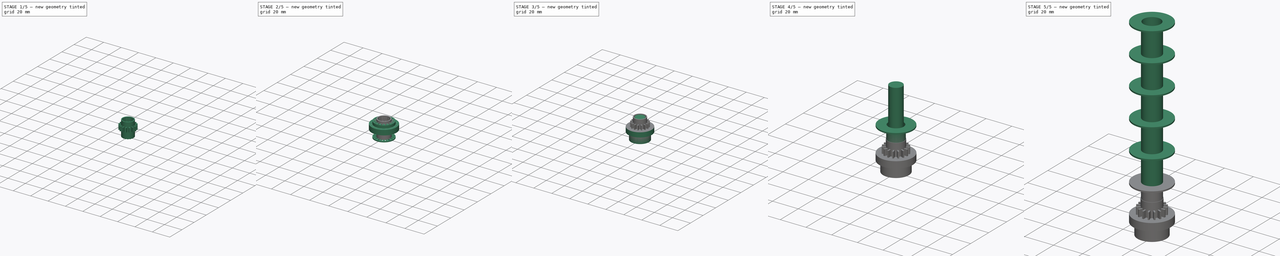
[diagram: build sequence overview — one tinted view per stage of 5, left to right]
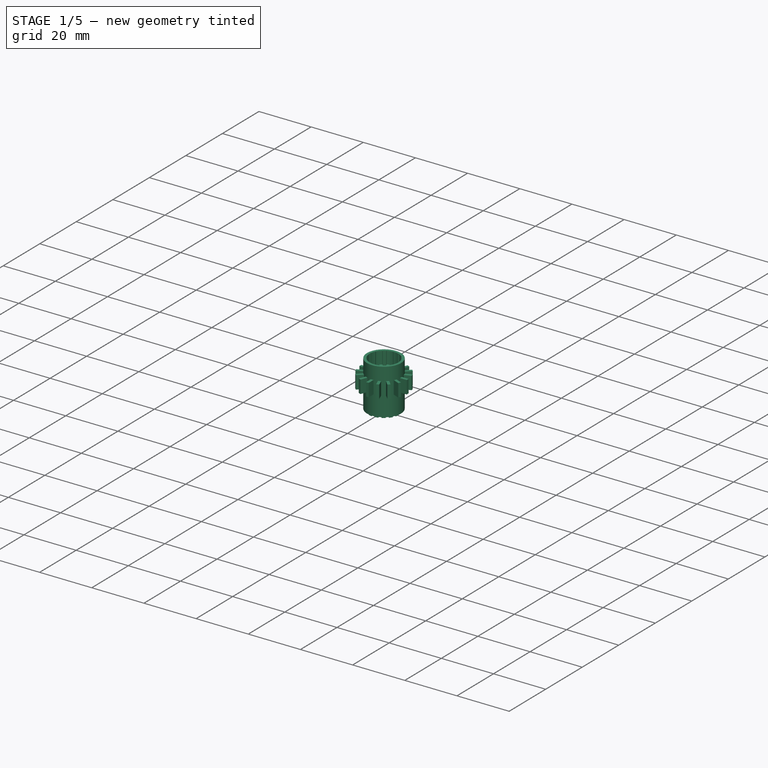
[diagram: stage 1 of 5 — iso view after this stage's code; geometry added in this stage tinted green]
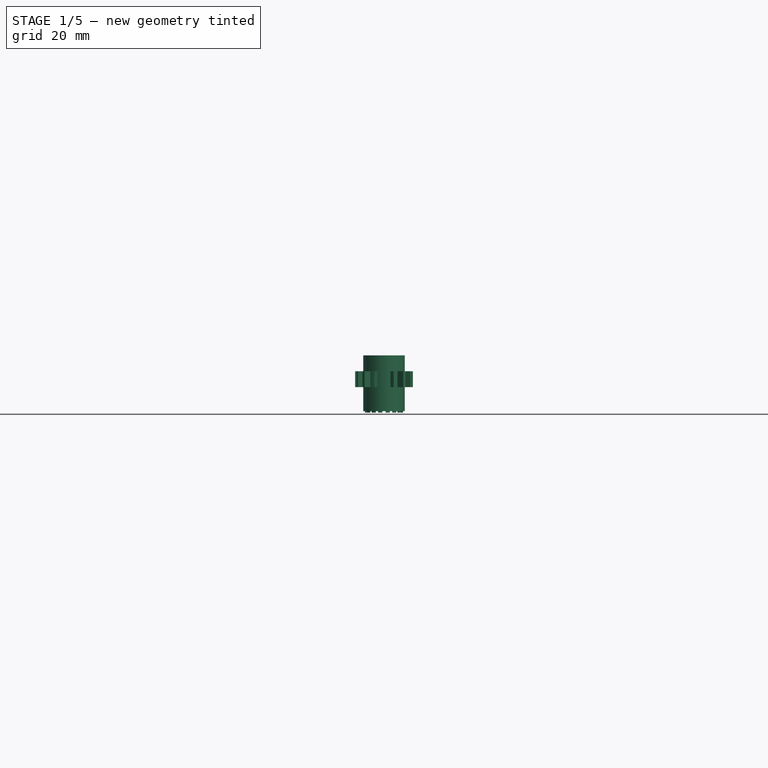
[diagram: stage 1 of 5 — front view after this stage's code; geometry added in this stage tinted green]
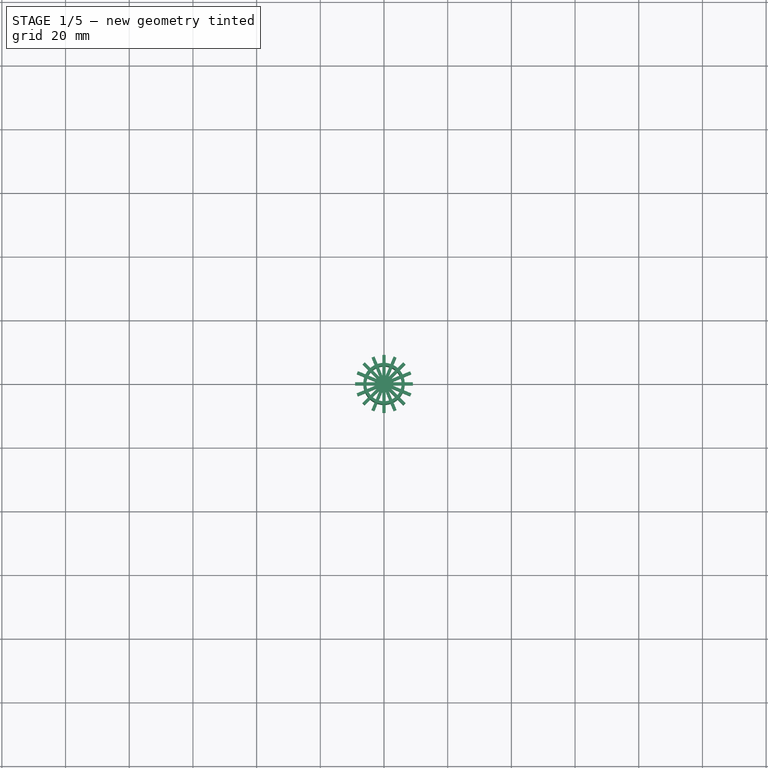
[diagram: stage 1 of 5 — top view after this stage's code; geometry added in this stage tinted green]
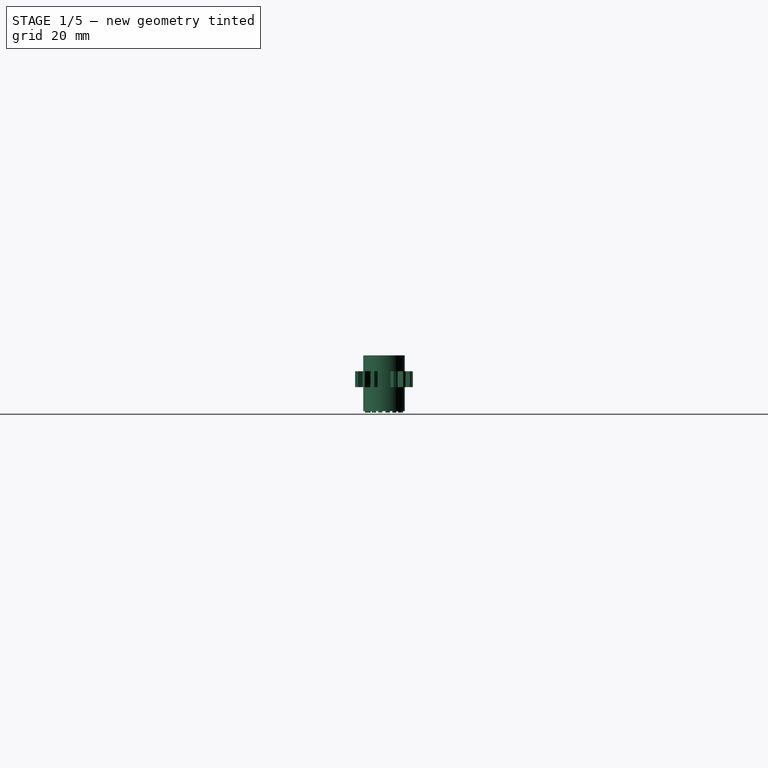
[diagram: stage 1 of 5 — right view after this stage's code; geometry added in this stage tinted green]
FCSTD DOCUMENT  (FreeCAD 1.0R39109 (Git))
Label: linear
License: All rights reserved
LicenseURL: https://en.wikipedia.org/wiki/All_rights_reserved
objects: PartDesign::Body×18, Sketcher::SketchObject×13, PartDesign::FeatureBase×10, PartDesign::Pad×8, PartDesign::Pocket×5, Part::MultiFuse×5, Spreadsheet::Sheet×2, Part::Cylinder×1, Part::Feature×1
note: 110 computed .brp shape members not serialized (recipe doc carries the construction recipe); baked Part::Feature solids carry a one-line shape summary decoded from their .brp

FEATURE [PartDesign::Body] Body015  label="Coil_side"
  AllowCompound = false
  Group = -> [Sketch007,Sketch008,Pad004,Pocket002]
  Origin = -> Origin015
  Placement = pos=(0,0,-8) rot=(0,0,1;0rad)
  Tip = -> Pocket002
FEATURE [Spreadsheet::Sheet] Spreadsheet001  label="Sizes001"
  cells = A1='Bearing_external_diameter; B1(Bearing_external_diameter)=20; A2='Bearing_internal_diameter; B2(Bearing_internal_diameter)=10.9; A3='Coil_base_internal_diameter; B3(Coil_base_internal_diameter)=11.9; A4='Coil_base_external_diameter; B4(Coil_base_external_diameter)=12.5; A5='Coil_length; B5(Coil_length)=19; A6='Coil_base_length; B6(Coil_base_length)=20; A7='Magnet_length; B7(Magnet_length)=9.6; A8='Magnet_diameter; B8(Magnet_diameter)=9.9; A9='Bearing_length; B9(Bearing_length)=1; A10='Coil_external_diameter; B10(Coil_external_diameter)=26
FEATURE [Sketcher::SketchObject] Sketch009  label="LinearBearingBaseSketch002"
  ArcFitTolerance = 1e-06
  AttachmentSupport = -> [XY_Plane016]
  FullyConstrained = true
  MakeInternals = false
  MapMode = 5
  sketch-geometry (24):
    g0: Circle CenterX=0 CenterY=0 CenterZ=0 NormalX=0 NormalY=0 NormalZ=1 AngleXU=0 Radius=6
    g1: LineSegment [constr] StartX=9 StartY=-2e-16 StartZ=0 EndX=8.10872 EndY=3.90495 EndZ=0
    g2: LineSegment [constr] StartX=8.10872 StartY=3.90495 StartZ=0 EndX=5.61141 EndY=7.03648 EndZ=0
    g3: LineSegment [constr] StartX=5.61141 StartY=7.03648 StartZ=0 EndX=2.00269 EndY=8.77435 EndZ=0
    g4: LineSegment [constr] StartX=2.00269 StartY=8.77435 StartZ=0 EndX=-2.00269 EndY=8.77435 EndZ=0
    g5: LineSegment [constr] StartX=-2.00269 StartY=8.77435 StartZ=0 EndX=-5.61141 EndY=7.03648 EndZ=0
    g6: LineSegment [constr] StartX=-5.61141 StartY=7.03648 StartZ=0 EndX=-8.10872 EndY=3.90495 EndZ=0
    g7: LineSegment [constr] StartX=-8.10872 StartY=3.90495 StartZ=0 EndX=-9 EndY=-1.1e-15 EndZ=0
    g8: LineSegment [constr] StartX=-9 StartY=-1.1e-15 StartZ=0 EndX=-8.10872 EndY=-3.90495 EndZ=0
    g9: LineSegment [constr] StartX=-8.10872 StartY=-3.90495 StartZ=0 EndX=-5.61141 EndY=-7.03648 EndZ=0
    g10: LineSegment [constr] StartX=-5.61141 StartY=-7.03648 StartZ=0 EndX=-2.00269 EndY=-8.77435 EndZ=0
    g11: LineSegment [constr] StartX=-2.00269 StartY=-8.77435 StartZ=0 EndX=2.00269 EndY=-8.77435 EndZ=0
    g12: LineSegment [constr] StartX=2.00269 StartY=-8.77435 StartZ=0 EndX=5.61141 EndY=-7.03648 EndZ=0
    g13: LineSegment [constr] StartX=5.61141 StartY=-7.03648 StartZ=0 EndX=8.10872 EndY=-3.90495 EndZ=0
    g14: LineSegment [constr] StartX=8.10872 StartY=-3.90495 StartZ=0 EndX=9 EndY=-2e-16 EndZ=0
    g15: Circle [constr] CenterX=0 CenterY=0 CenterZ=0 NormalX=0 NormalY=0 NormalZ=1 AngleXU=0 Radius=9
    g16: LineSegment [constr] StartX=-2.00269 StartY=8.77435 StartZ=0 EndX=2.00269 EndY=-8.77435 EndZ=0
    g17: LineSegment [constr] StartX=2.00269 StartY=8.77435 StartZ=0 EndX=-2.00269 EndY=-8.77435 EndZ=0
    g18: LineSegment [constr] StartX=5.61141 StartY=7.03648 StartZ=0 EndX=-5.61141 EndY=-7.03648 EndZ=0
    g19: LineSegment [constr] StartX=8.10872 StartY=3.90495 StartZ=0 EndX=-8.10872 EndY=-3.90495 EndZ=0
    g20: LineSegment [constr] StartX=9 StartY=-2e-16 StartZ=0 EndX=-9 EndY=-1.1e-15 EndZ=0
    g21: LineSegment [constr] StartX=-8.10872 StartY=3.90495 StartZ=0 EndX=8.10872 EndY=-3.90495 EndZ=0
    g22: LineSegment [constr] StartX=-5.61141 StartY=7.03648 StartZ=0 EndX=5.61141 EndY=-7.03648 EndZ=0
    g23: Circle CenterX=0 CenterY=0 CenterZ=0 NormalX=0 NormalY=0 NormalZ=1 AngleXU=0 Radius=5.55
  constraints (50):
    c: Diameter(g0) = 12
    c: Coincident(g0,g-1)
    c: Coincident(g1,g2)
    c: Coincident(g2,g3)
    c: Coincident(g3,g4)
    c: Coincident(g4,g5)
    c: Coincident(g5,g6)
    c: Coincident(g6,g7)
    c: Coincident(g7,g8)
    c: Coincident(g8,g9)
    c: Coincident(g9,g10)
    c: Coincident(g10,g11)
    c: Coincident(g11,g12)
    c: Coincident(g12,g13)
    c: Coincident(g13,g14)
    c: Coincident(g14,g1)
    c: Equal(g1, g2-g14) x13
    c: PointOnObject(g1,g15)
    c: PointOnObject(g2,g15)
    c: PointOnObject(g3,g15)
    c: PointOnObject(g4,g15)
    c: PointOnObject(g5,g15)
    c: PointOnObject(g6,g15)
    c: PointOnObject(g7,g15)
    c: PointOnObject(g8,g15)
    c: PointOnObject(g9,g15)
    c: PointOnObject(g10,g15)
    c: PointOnObject(g11,g15)
    c: PointOnObject(g12,g15)
    c: PointOnObject(g13,g15)
    c: PointOnObject(g14,g15)
    c: Radius(g15) = 9
    c: Coincident(g15,g0)
    c: PointOnObject(g14,g-1)
    c: Coincident(g16,g4)
    c: Coincident(g16,g11)
    c: Coincident(g17,g3)
    c: Coincident(g17,g10)
    c: Coincident(g18,g2)
    c: Coincident(g18,g9)
    c: Coincident(g19,g1)
    c: Coincident(g19,g8)
    c: Coincident(g20,g1)
    c: Coincident(g20,g7)
    c: Coincident(g21,g6)
    c: Coincident(g21,g13)
    c: Coincident(g22,g5)
    c: Coincident(g22,g12)
    c: Diameter(g23) = 11.1
    c: Coincident(g23,g0)
FEATURE [PartDesign::Pad] Pad005  label="LinearBearingBasePad002"
  Direction = (0,0,1)
  Length = 18
  Length2 = 10
  Profile = -> Sketch009
  ReferenceAxis = -> Sketch009 [N_Axis]
  Refine = true
  Suppressed = false
  Type = 0
FEATURE [Sketcher::SketchObject] Sketch010  label="LinearBearingBaseCutSketch002"
  ArcFitTolerance = 1e-06
  AttachmentSupport = -> [XY_Plane016]
  FullyConstrained = false
  MakeInternals = false
  MapMode = 5
  sketch-geometry (32):
    g0: LineSegment StartX=-0.5 StartY=9.08 StartZ=0 EndX=-0.5 EndY=-9.08 EndZ=0
    g1: LineSegment StartX=-0.5 StartY=-9.08 StartZ=0 EndX=0.5 EndY=-9.08 EndZ=0
    g2: LineSegment StartX=0.5 StartY=-9.08 StartZ=0 EndX=0.5 EndY=9.08 EndZ=0
    g3: LineSegment StartX=0.5 StartY=9.08 StartZ=0 EndX=-0.5 EndY=9.08 EndZ=0
    g4: LineSegment StartX=3.01522 StartY=8.5789 StartZ=0 EndX=-3.94052 EndY=-8.19716 EndZ=0
    g5: LineSegment StartX=-3.94052 StartY=-8.19716 StartZ=0 EndX=-3.01677 EndY=-8.58017 EndZ=0
    g6: LineSegment StartX=-3.01677 StartY=-8.58017 StartZ=0 EndX=3.93896 EndY=8.19589 EndZ=0
    g7: LineSegment StartX=3.93896 StartY=8.19589 StartZ=0 EndX=3.01522 EndY=8.5789 EndZ=0
    g8: LineSegment StartX=6.05635 StartY=6.77074 StartZ=0 EndX=-6.77744 EndY=-6.04961 EndZ=0
    g9: LineSegment StartX=-6.77744 StartY=-6.04961 StartZ=0 EndX=-6.0707 EndY=-6.75709 EndZ=0
    g10: LineSegment StartX=-6.0707 StartY=-6.75709 StartZ=0 EndX=6.76308 EndY=6.06327 EndZ=0
    g11: LineSegment StartX=6.76308 StartY=6.06327 StartZ=0 EndX=6.05635 EndY=6.77074 EndZ=0
    g12: LineSegment StartX=8.20348 StartY=3.93013 StartZ=0 EndX=-8.58261 EndY=-3.00574 EndZ=0
    g13: LineSegment StartX=-8.58261 StartY=-3.00574 StartZ=0 EndX=-8.20073 EndY=-3.92995 EndZ=0
    g14: LineSegment StartX=-8.20073 StartY=-3.92995 StartZ=0 EndX=8.58536 EndY=3.00592 EndZ=0
    g15: LineSegment StartX=8.58536 StartY=3.00592 StartZ=0 EndX=8.20348 EndY=3.93013 EndZ=0
    g16: LineSegment StartX=9.08056 StartY=0.490007 StartZ=0 EndX=-9.07944 EndY=0.490007 EndZ=0
    g17: LineSegment StartX=-9.07944 StartY=0.490007 StartZ=0 EndX=-9.07944 EndY=-0.509993 EndZ=0
    g18: LineSegment StartX=-9.07944 StartY=-0.509993 StartZ=0 EndX=9.08056 EndY=-0.509993 EndZ=0
    g19: LineSegment StartX=9.08056 StartY=-0.509993 StartZ=0 EndX=9.08056 EndY=0.490007 EndZ=0
    g20: LineSegment StartX=8.58536 StartY=-3.00592 StartZ=0 EndX=-8.19192 EndY=3.97092 EndZ=0
    g21: LineSegment StartX=-8.19192 StartY=3.97092 StartZ=0 EndX=-8.57589 EndY=3.04757 EndZ=0
    g22: LineSegment StartX=-8.57589 StartY=3.04757 StartZ=0 EndX=8.20139 EndY=-3.92926 EndZ=0
    g23: LineSegment StartX=8.20139 StartY=-3.92926 StartZ=0 EndX=8.58536 EndY=-3.00592 EndZ=0
    g24: LineSegment StartX=6.76308 StartY=-6.06327 StartZ=0 EndX=-6.04296 EndY=6.78307 EndZ=0
    g25: LineSegment StartX=-6.04296 StartY=6.78307 StartZ=0 EndX=-6.75117 EndY=6.07707 EndZ=0
    g26: LineSegment StartX=-6.75117 StartY=6.07707 StartZ=0 EndX=6.05487 EndY=-6.76926 EndZ=0
    g27: LineSegment StartX=6.05487 StartY=-6.76926 StartZ=0 EndX=6.76308 EndY=-6.06327 EndZ=0
    g28: LineSegment StartX=3.93896 StartY=-8.19589 StartZ=0 EndX=-2.97459 EndY=8.58596 EndZ=0
    g29: LineSegment StartX=-2.97459 StartY=8.58596 StartZ=0 EndX=-3.8992 EndY=8.20505 EndZ=0
    g30: LineSegment StartX=-3.8992 StartY=8.20505 StartZ=0 EndX=3.01435 EndY=-8.5768 EndZ=0
    g31: LineSegment StartX=3.01435 StartY=-8.5768 StartZ=0 EndX=3.93896 EndY=-8.19589 EndZ=0
  constraints (71):
    c: Coincident(g0,g1)
    c: Coincident(g1,g2)
    c: Coincident(g2,g3)
    c: Coincident(g3,g0)
    c: Vertical(g2)
    c: Horizontal(g1)
    c: Distance(g2) = 18.16
    c: Coincident(g4,g5)
    c: Coincident(g8,g9)
    c: Coincident(g12,g13)
    c: Coincident(g16,g17)
    c: Coincident(g20,g21)
    c: Coincident(g24,g25)
    c: Coincident(g28,g29)
    c: Coincident(g5,g6)
    c: Coincident(g9,g10)
    c: Coincident(g13,g14)
    c: Coincident(g17,g18)
    c: Coincident(g21,g22)
    c: Coincident(g25,g26)
    c: Coincident(g29,g30)
    c: Coincident(g6,g7)
    c: Coincident(g10,g11)
    c: Coincident(g14,g15)
    c: Coincident(g18,g19)
    c: Coincident(g22,g23)
    c: Coincident(g26,g27)
    c: Coincident(g30,g31)
    c: Coincident(g7,g4)
    c: Coincident(g11,g8)
    c: Coincident(g15,g12)
    c: Coincident(g19,g16)
    c: Coincident(g23,g20)
    c: Coincident(g27,g24)
    c: Coincident(g31,g28)
    c: Horizontal(g16)
    c: Vertical(g17)
    c: Angle(g4) = -1.96384
    c: Angle(g18,g8) = 0.784875
    c: Angle(g18,g12) = 0.391826
    c: Angle(g18,g22) = 2.7475
    c: Angle(g18,g26) = 2.35462
    c: Vertical(g0)
    c: Horizontal(g3)
    c: Parallel(g21,g23)
    c: Parallel(g20,g22)
    c: Perpendicular(g21,g20)
    c: Perpendicular(g25,g26)
    c: Parallel(g25,g27)
    c: Parallel(g30,g28)
    c: Parallel(g14,g12)
    c: Perpendicular(g15,g14)
    c: Parallel(g13,g15)
    c: Perpendicular(g8,g9)
    c: Parallel(g10,g8)
    c: Parallel(g9,g11)
    c: Parallel(g4,g6)
    c: Perpendicular(g4,g5)
    c: Parallel(g5,g7)
    c: Symmetric(g28,g6,g-1)
    c: Symmetric(g24,g10,g-1)
    c: Symmetric(g20,g14,g-1)
    c: Equal(g31,g27)
    c: Equal(g27,g23)
    c: Equal(g23,g19)
    c: Equal(g11,g7)
    c: Equal(g7,g29)
    c: Equal(g29,g25)
    c: Equal(g21,g17)
    c: Equal(g17,g13)
    c: Horizontal(g18)
FEATURE [PartDesign::Pocket] Pocket003  label="LinearBearingBasePocket002"
  BaseFeature = -> Pad005
  Direction = (0,0,-1)
  Length = 17.9
  Length2 = 5
  Profile = -> Sketch010
  ReferenceAxis = -> Sketch010 [N_Axis]
  Refine = true
  Reversed = true
  Suppressed = false
  Type = 0
FEATURE [PartDesign::Body] Body016  label="coil_bearing_002"
  AllowCompound = false
  Group = -> [Sketch009,Sketch010,Pad005,Pocket003]
  Origin = -> Origin016
  Placement = pos=(0,0,-8) rot=(0,0,1;0rad)
  Tip = -> Pocket003
FEATURE [Sketcher::SketchObject] Sketch011  label="LinearBearingBaseSketch003"
  ArcFitTolerance = 1e-06
  AttachmentSupport = -> [XY_Plane017]
  FullyConstrained = true
  MakeInternals = false
  MapMode = 5
  sketch-geometry (24):
    g0: Circle CenterX=0 CenterY=0 CenterZ=0 NormalX=0 NormalY=0 NormalZ=1 AngleXU=0 Radius=6.5
    g1: LineSegment [constr] StartX=9 StartY=-2e-16 StartZ=0 EndX=8.10872 EndY=3.90495 EndZ=0
    g2: LineSegment [constr] StartX=8.10872 StartY=3.90495 StartZ=0 EndX=5.61141 EndY=7.03648 EndZ=0
    g3: LineSegment [constr] StartX=5.61141 StartY=7.03648 StartZ=0 EndX=2.00269 EndY=8.77435 EndZ=0
    g4: LineSegment [constr] StartX=2.00269 StartY=8.77435 StartZ=0 EndX=-2.00269 EndY=8.77435 EndZ=0
    g5: LineSegment [constr] StartX=-2.00269 StartY=8.77435 StartZ=0 EndX=-5.61141 EndY=7.03648 EndZ=0
    g6: LineSegment [constr] StartX=-5.61141 StartY=7.03648 StartZ=0 EndX=-8.10872 EndY=3.90495 EndZ=0
    g7: LineSegment [constr] StartX=-8.10872 StartY=3.90495 StartZ=0 EndX=-9 EndY=-1.1e-15 EndZ=0
    g8: LineSegment [constr] StartX=-9 StartY=-1.1e-15 StartZ=0 EndX=-8.10872 EndY=-3.90495 EndZ=0
    g9: LineSegment [constr] StartX=-8.10872 StartY=-3.90495 StartZ=0 EndX=-5.61141 EndY=-7.03648 EndZ=0
    g10: LineSegment [constr] StartX=-5.61141 StartY=-7.03648 StartZ=0 EndX=-2.00269 EndY=-8.77435 EndZ=0
    g11: LineSegment [constr] StartX=-2.00269 StartY=-8.77435 StartZ=0 EndX=2.00269 EndY=-8.77435 EndZ=0
    g12: LineSegment [constr] StartX=2.00269 StartY=-8.77435 StartZ=0 EndX=5.61141 EndY=-7.03648 EndZ=0
    g13: LineSegment [constr] StartX=5.61141 StartY=-7.03648 StartZ=0 EndX=8.10872 EndY=-3.90495 EndZ=0
    g14: LineSegment [constr] StartX=8.10872 StartY=-3.90495 StartZ=0 EndX=9 EndY=-2e-16 EndZ=0
    g15: Circle [constr] CenterX=0 CenterY=0 CenterZ=0 NormalX=0 NormalY=0 NormalZ=1 AngleXU=0 Radius=9
    g16: LineSegment [constr] StartX=-2.00269 StartY=8.77435 StartZ=0 EndX=2.00269 EndY=-8.77435 EndZ=0
    g17: LineSegment [constr] StartX=2.00269 StartY=8.77435 StartZ=0 EndX=-2.00269 EndY=-8.77435 EndZ=0
    g18: LineSegment [constr] StartX=5.61141 StartY=7.03648 StartZ=0 EndX=-5.61141 EndY=-7.03648 EndZ=0
    g19: LineSegment [constr] StartX=8.10872 StartY=3.90495 StartZ=0 EndX=-8.10872 EndY=-3.90495 EndZ=0
    g20: LineSegment [constr] StartX=9 StartY=-2e-16 StartZ=0 EndX=-9 EndY=-1.1e-15 EndZ=0
    g21: LineSegment [constr] StartX=-8.10872 StartY=3.90495 StartZ=0 EndX=8.10872 EndY=-3.90495 EndZ=0
    g22: LineSegment [constr] StartX=-5.61141 StartY=7.03648 StartZ=0 EndX=5.61141 EndY=-7.03648 EndZ=0
    g23: Circle CenterX=0 CenterY=0 CenterZ=0 NormalX=0 NormalY=0 NormalZ=1 AngleXU=0 Radius=6
  constraints (50):
    c: Diameter(g0) = 13
    c: Coincident(g0,g-1)
    c: Coincident(g1,g2)
    c: Coincident(g2,g3)
    c: Coincident(g3,g4)
    c: Coincident(g4,g5)
    c: Coincident(g5,g6)
    c: Coincident(g6,g7)
    c: Coincident(g7,g8)
    c: Coincident(g8,g9)
    c: Coincident(g9,g10)
    c: Coincident(g10,g11)
    c: Coincident(g11,g12)
    c: Coincident(g12,g13)
    c: Coincident(g13,g14)
    c: Coincident(g14,g1)
    c: Equal(g1, g2-g14) x13
    c: PointOnObject(g1,g15)
    c: PointOnObject(g2,g15)
    c: PointOnObject(g3,g15)
    c: PointOnObject(g4,g15)
    c: PointOnObject(g5,g15)
    c: PointOnObject(g6,g15)
    c: PointOnObject(g7,g15)
    c: PointOnObject(g8,g15)
    c: PointOnObject(g9,g15)
    c: PointOnObject(g10,g15)
    c: PointOnObject(g11,g15)
    c: PointOnObject(g12,g15)
    c: PointOnObject(g13,g15)
    c: PointOnObject(g14,g15)
    c: Radius(g15) = 9
    c: Coincident(g15,g0)
    c: PointOnObject(g14,g-1)
    c: Coincident(g16,g4)
    c: Coincident(g16,g11)
    c: Coincident(g17,g3)
    c: Coincident(g17,g10)
    c: Coincident(g18,g2)
    c: Coincident(g18,g9)
    c: Coincident(g19,g1)
    c: Coincident(g19,g8)
    c: Coincident(g20,g1)
    c: Coincident(g20,g7)
    c: Coincident(g21,g6)
    c: Coincident(g21,g13)
    c: Coincident(g22,g5)
    c: Coincident(g22,g12)
    c: Diameter(g23) = 12
    c: Coincident(g23,g0)
FEATURE [PartDesign::Pad] Pad006
  Direction = (0,0,1)
  Length = 17.5
  Length2 = 10
  Profile = -> Sketch011
  ReferenceAxis = -> Sketch011 [N_Axis]
  Refine = true
  Suppressed = false
  Type = 0
FEATURE [PartDesign::Body] Body017
  AllowCompound = false
  Group = -> [Sketch011,Pad006]
  Origin = -> Origin017
  Placement = pos=(0,0,-7.5) rot=(0,0,1;0rad)
  Tip = -> Pad006
FEATURE [Part::MultiFuse] Fusion003  label="Coil_base"
  Refine = true
  Shapes = -> [Body017,Body016]
FEATURE [Sketcher::SketchObject] Sketch012  label="LinearBearingBaseCutSketch003"
  ArcFitTolerance = 1e-06
  AttachmentSupport = -> [XY_Plane020]
  FullyConstrained = false
  MakeInternals = false
  MapMode = 5
  sketch-geometry (32):
    g0: LineSegment StartX=-0.5 StartY=9.08 StartZ=0 EndX=-0.5 EndY=-9.08 EndZ=0
    g1: LineSegment StartX=-0.5 StartY=-9.08 StartZ=0 EndX=0.5 EndY=-9.08 EndZ=0
    g2: LineSegment StartX=0.5 StartY=-9.08 StartZ=0 EndX=0.5 EndY=9.08 EndZ=0
    g3: LineSegment StartX=0.5 StartY=9.08 StartZ=0 EndX=-0.5 EndY=9.08 EndZ=0
    g4: LineSegment StartX=3.01522 StartY=8.5789 StartZ=0 EndX=-3.94052 EndY=-8.19716 EndZ=0
    g5: LineSegment StartX=-3.94052 StartY=-8.19716 StartZ=0 EndX=-3.01677 EndY=-8.58017 EndZ=0
    g6: LineSegment StartX=-3.01677 StartY=-8.58017 StartZ=0 EndX=3.93896 EndY=8.19589 EndZ=0
    g7: LineSegment StartX=3.93896 StartY=8.19589 StartZ=0 EndX=3.01522 EndY=8.5789 EndZ=0
    g8: LineSegment StartX=6.05635 StartY=6.77074 StartZ=0 EndX=-6.77744 EndY=-6.04961 EndZ=0
    g9: LineSegment StartX=-6.77744 StartY=-6.04961 StartZ=0 EndX=-6.0707 EndY=-6.75709 EndZ=0
    g10: LineSegment StartX=-6.0707 StartY=-6.75709 StartZ=0 EndX=6.76308 EndY=6.06327 EndZ=0
    g11: LineSegment StartX=6.76308 StartY=6.06327 StartZ=0 EndX=6.05635 EndY=6.77074 EndZ=0
    g12: LineSegment StartX=8.20348 StartY=3.93013 StartZ=0 EndX=-8.58261 EndY=-3.00574 EndZ=0
    g13: LineSegment StartX=-8.58261 StartY=-3.00574 StartZ=0 EndX=-8.20073 EndY=-3.92995 EndZ=0
    g14: LineSegment StartX=-8.20073 StartY=-3.92995 StartZ=0 EndX=8.58536 EndY=3.00592 EndZ=0
    g15: LineSegment StartX=8.58536 StartY=3.00592 StartZ=0 EndX=8.20348 EndY=3.93013 EndZ=0
    g16: LineSegment StartX=9.08056 StartY=0.490007 StartZ=0 EndX=-9.07944 EndY=0.490007 EndZ=0
    g17: LineSegment StartX=-9.07944 StartY=0.490007 StartZ=0 EndX=-9.07944 EndY=-0.509993 EndZ=0
    g18: LineSegment StartX=-9.07944 StartY=-0.509993 StartZ=0 EndX=9.08056 EndY=-0.509993 EndZ=0
    g19: LineSegment StartX=9.08056 StartY=-0.509993 StartZ=0 EndX=9.08056 EndY=0.490007 EndZ=0
    g20: LineSegment StartX=8.58536 StartY=-3.00592 StartZ=0 EndX=-8.19192 EndY=3.97092 EndZ=0
    g21: LineSegment StartX=-8.19192 StartY=3.97092 StartZ=0 EndX=-8.57589 EndY=3.04757 EndZ=0
    g22: LineSegment StartX=-8.57589 StartY=3.04757 StartZ=0 EndX=8.20139 EndY=-3.92926 EndZ=0
    g23: LineSegment StartX=8.20139 StartY=-3.92926 StartZ=0 EndX=8.58536 EndY=-3.00592 EndZ=0
    g24: LineSegment StartX=6.76308 StartY=-6.06327 StartZ=0 EndX=-6.04296 EndY=6.78307 EndZ=0
    g25: LineSegment StartX=-6.04296 StartY=6.78307 StartZ=0 EndX=-6.75117 EndY=6.07707 EndZ=0
    g26: LineSegment StartX=-6.75117 StartY=6.07707 StartZ=0 EndX=6.05487 EndY=-6.76926 EndZ=0
    g27: LineSegment StartX=6.05487 StartY=-6.76926 StartZ=0 EndX=6.76308 EndY=-6.06327 EndZ=0
    g28: LineSegment StartX=3.93896 StartY=-8.19589 StartZ=0 EndX=-2.97459 EndY=8.58596 EndZ=0
    g29: LineSegment StartX=-2.97459 StartY=8.58596 StartZ=0 EndX=-3.8992 EndY=8.20505 EndZ=0
    g30: LineSegment StartX=-3.8992 StartY=8.20505 StartZ=0 EndX=3.01435 EndY=-8.5768 EndZ=0
    g31: LineSegment StartX=3.01435 StartY=-8.5768 StartZ=0 EndX=3.93896 EndY=-8.19589 EndZ=0
  constraints (71):
    c: Coincident(g0,g1)
    c: Coincident(g1,g2)
    c: Coincident(g2,g3)
    c: Coincident(g3,g0)
    c: Vertical(g2)
    c: Horizontal(g1)
    c: Distance(g2) = 18.16
    c: Coincident(g4,g5)
    c: Coincident(g8,g9)
    c: Coincident(g12,g13)
    c: Coincident(g16,g17)
    c: Coincident(g20,g21)
    c: Coincident(g24,g25)
    c: Coincident(g28,g29)
    c: Coincident(g5,g6)
    c: Coincident(g9,g10)
    c: Coincident(g13,g14)
    c: Coincident(g17,g18)
    c: Coincident(g21,g22)
    c: Coincident(g25,g26)
    c: Coincident(g29,g30)
    c: Coincident(g6,g7)
    c: Coincident(g10,g11)
    c: Coincident(g14,g15)
    c: Coincident(g18,g19)
    c: Coincident(g22,g23)
    c: Coincident(g26,g27)
    c: Coincident(g30,g31)
    c: Coincident(g7,g4)
    c: Coincident(g11,g8)
    c: Coincident(g15,g12)
    c: Coincident(g19,g16)
    c: Coincident(g23,g20)
    c: Coincident(g27,g24)
    c: Coincident(g31,g28)
    c: Horizontal(g16)
    c: Vertical(g17)
    c: Angle(g4) = -1.96384
    c: Angle(g18,g8) = 0.784875
    c: Angle(g18,g12) = 0.391826
    c: Angle(g18,g22) = 2.7475
    c: Angle(g18,g26) = 2.35462
    c: Vertical(g0)
    c: Horizontal(g3)
    c: Parallel(g21,g23)
    c: Parallel(g20,g22)
    c: Perpendicular(g21,g20)
    c: Perpendicular(g25,g26)
    c: Parallel(g25,g27)
    c: Parallel(g30,g28)
    c: Parallel(g14,g12)
    c: Perpendicular(g15,g14)
    c: Parallel(g13,g15)
    c: Perpendicular(g8,g9)
    c: Parallel(g10,g8)
    c: Parallel(g9,g11)
    c: Parallel(g4,g6)
    c: Perpendicular(g4,g5)
    c: Parallel(g5,g7)
    c: Symmetric(g28,g6,g-1)
    c: Symmetric(g24,g10,g-1)
    c: Symmetric(g20,g14,g-1)
    c: Equal(g31,g27)
    c: Equal(g27,g23)
    c: Equal(g23,g19)
    c: Equal(g11,g7)
    c: Equal(g7,g29)
    c: Equal(g29,g25)
    c: Equal(g21,g17)
    c: Equal(g17,g13)
    c: Horizontal(g18)
FEATURE [Sketcher::SketchObject] Sketch013  label="LinearBearingBaseSketch004"
  ArcFitTolerance = 1e-06
  AttachmentSupport = -> [XY_Plane020]
  FullyConstrained = true
  MakeInternals = false
  MapMode = 5
  sketch-geometry (24):
    g0: Circle CenterX=0 CenterY=0 CenterZ=0 NormalX=0 NormalY=0 NormalZ=1 AngleXU=0 Radius=6
    g1: LineSegment [constr] StartX=9 StartY=-2e-16 StartZ=0 EndX=8.10872 EndY=3.90495 EndZ=0
    g2: LineSegment [constr] StartX=8.10872 StartY=3.90495 StartZ=0 EndX=5.61141 EndY=7.03648 EndZ=0
    g3: LineSegment [constr] StartX=5.61141 StartY=7.03648 StartZ=0 EndX=2.00269 EndY=8.77435 EndZ=0
    g4: LineSegment [constr] StartX=2.00269 StartY=8.77435 StartZ=0 EndX=-2.00269 EndY=8.77435 EndZ=0
    g5: LineSegment [constr] StartX=-2.00269 StartY=8.77435 StartZ=0 EndX=-5.61141 EndY=7.03648 EndZ=0
    g6: LineSegment [constr] StartX=-5.61141 StartY=7.03648 StartZ=0 EndX=-8.10872 EndY=3.90495 EndZ=0
    g7: LineSegment [constr] StartX=-8.10872 StartY=3.90495 StartZ=0 EndX=-9 EndY=-1.1e-15 EndZ=0
    g8: LineSegment [constr] StartX=-9 StartY=-1.1e-15 StartZ=0 EndX=-8.10872 EndY=-3.90495 EndZ=0
    g9: LineSegment [constr] StartX=-8.10872 StartY=-3.90495 StartZ=0 EndX=-5.61141 EndY=-7.03648 EndZ=0
    g10: LineSegment [constr] StartX=-5.61141 StartY=-7.03648 StartZ=0 EndX=-2.00269 EndY=-8.77435 EndZ=0
    g11: LineSegment [constr] StartX=-2.00269 StartY=-8.77435 StartZ=0 EndX=2.00269 EndY=-8.77435 EndZ=0
    g12: LineSegment [constr] StartX=2.00269 StartY=-8.77435 StartZ=0 EndX=5.61141 EndY=-7.03648 EndZ=0
    g13: LineSegment [constr] StartX=5.61141 StartY=-7.03648 StartZ=0 EndX=8.10872 EndY=-3.90495 EndZ=0
    g14: LineSegment [constr] StartX=8.10872 StartY=-3.90495 StartZ=0 EndX=9 EndY=-2e-16 EndZ=0
    g15: Circle [constr] CenterX=0 CenterY=0 CenterZ=0 NormalX=0 NormalY=0 NormalZ=1 AngleXU=0 Radius=9
    g16: LineSegment [constr] StartX=-2.00269 StartY=8.77435 StartZ=0 EndX=2.00269 EndY=-8.77435 EndZ=0
    g17: LineSegment [constr] StartX=2.00269 StartY=8.77435 StartZ=0 EndX=-2.00269 EndY=-8.77435 EndZ=0
    g18: LineSegment [constr] StartX=5.61141 StartY=7.03648 StartZ=0 EndX=-5.61141 EndY=-7.03648 EndZ=0
    g19: LineSegment [constr] StartX=8.10872 StartY=3.90495 StartZ=0 EndX=-8.10872 EndY=-3.90495 EndZ=0
    g20: LineSegment [constr] StartX=9 StartY=-2e-16 StartZ=0 EndX=-9 EndY=-1.1e-15 EndZ=0
    g21: LineSegment [constr] StartX=-8.10872 StartY=3.90495 StartZ=0 EndX=8.10872 EndY=-3.90495 EndZ=0
    g22: LineSegment [constr] StartX=-5.61141 StartY=7.03648 StartZ=0 EndX=5.61141 EndY=-7.03648 EndZ=0
    g23: Circle CenterX=0 CenterY=0 CenterZ=0 NormalX=0 NormalY=0 NormalZ=1 AngleXU=0 Radius=5.55
  constraints (50):
    c: Diameter(g0) = 12
    c: Coincident(g0,g-1)
    c: Coincident(g1,g2)
    c: Coincident(g2,g3)
    c: Coincident(g3,g4)
    c: Coincident(g4,g5)
    c: Coincident(g5,g6)
    c: Coincident(g6,g7)
    c: Coincident(g7,g8)
    c: Coincident(g8,g9)
    c: Coincident(g9,g10)
    c: Coincident(g10,g11)
    c: Coincident(g11,g12)
    c: Coincident(g12,g13)
    c: Coincident(g13,g14)
    c: Coincident(g14,g1)
    c: Equal(g1, g2-g14) x13
    c: PointOnObject(g1,g15)
    c: PointOnObject(g2,g15)
    c: PointOnObject(g3,g15)
    c: PointOnObject(g4,g15)
    c: PointOnObject(g5,g15)
    c: PointOnObject(g6,g15)
    c: PointOnObject(g7,g15)
    c: PointOnObject(g8,g15)
    c: PointOnObject(g9,g15)
    c: PointOnObject(g10,g15)
    c: PointOnObject(g11,g15)
    c: PointOnObject(g12,g15)
    c: PointOnObject(g13,g15)
    c: PointOnObject(g14,g15)
    c: Radius(g15) = 9
    c: Coincident(g15,g0)
    c: PointOnObject(g14,g-1)
    c: Coincident(g16,g4)
    c: Coincident(g16,g11)
    c: Coincident(g17,g3)
    c: Coincident(g17,g10)
    c: Coincident(g18,g2)
    c: Coincident(g18,g9)
    c: Coincident(g19,g1)
    c: Coincident(g19,g8)
    c: Coincident(g20,g1)
    c: Coincident(g20,g7)
    c: Coincident(g21,g6)
    c: Coincident(g21,g13)
    c: Coincident(g22,g5)
    c: Coincident(g22,g12)
    c: Diameter(g23) = 11.1
    c: Coincident(g23,g0)
FEATURE [PartDesign::Pad] Pad007
  Direction = (0,0,1)
  Length = 5
  Length2 = 10
  Profile = -> Sketch012
  ReferenceAxis = -> Sketch012 [N_Axis]
  Refine = true
  Suppressed = false
  Type = 0
FEATURE [PartDesign::Pocket] Pocket004
  BaseFeature = -> Pad007
  Direction = (0,0,-1)
  Length = 5
  Length2 = 5
  Midplane = true
  Profile = -> Sketch013
  ReferenceAxis = -> Sketch013 [N_Axis]
  Refine = true
  Suppressed = false
  Type = 0
FEATURE [PartDesign::Body] Body018
  AllowCompound = false
  Group = -> [Sketch012,Pad007,Sketch013,Pocket004]
  Origin = -> Origin018
  Tip = -> Pocket004
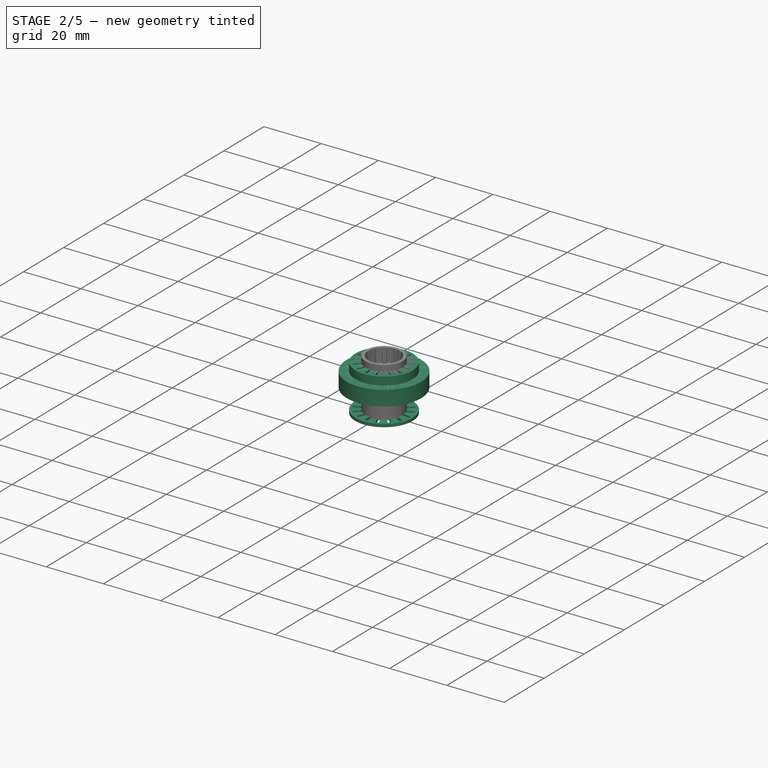
[diagram: stage 2 of 5 — iso view after this stage's code; geometry added in this stage tinted green]
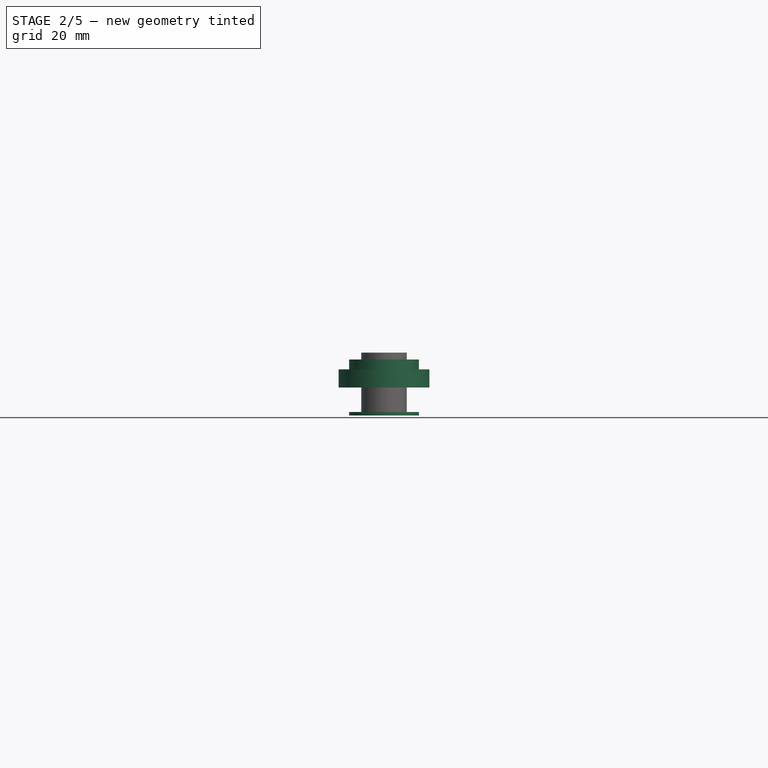
[diagram: stage 2 of 5 — front view after this stage's code; geometry added in this stage tinted green]
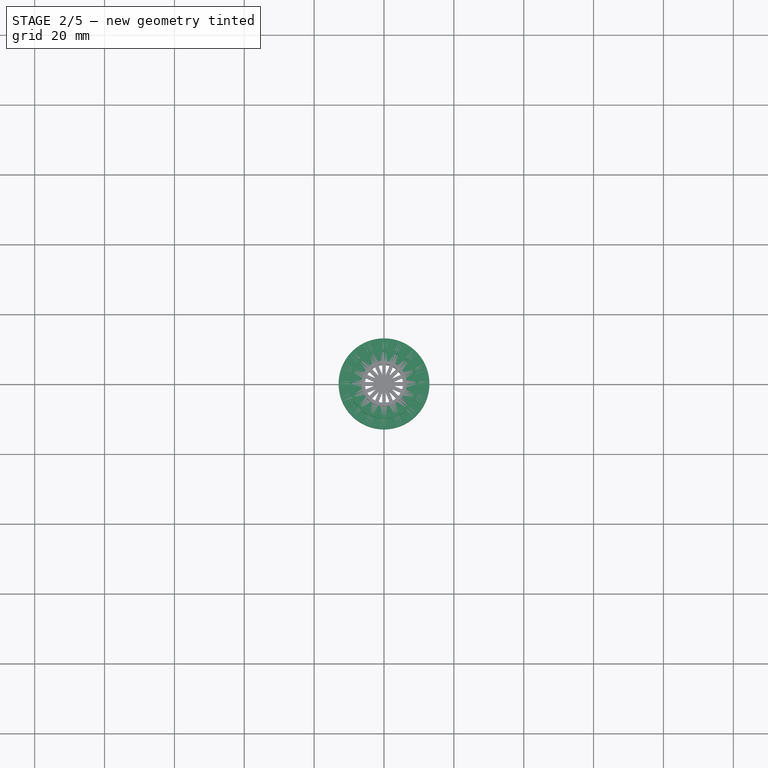
[diagram: stage 2 of 5 — top view after this stage's code; geometry added in this stage tinted green]
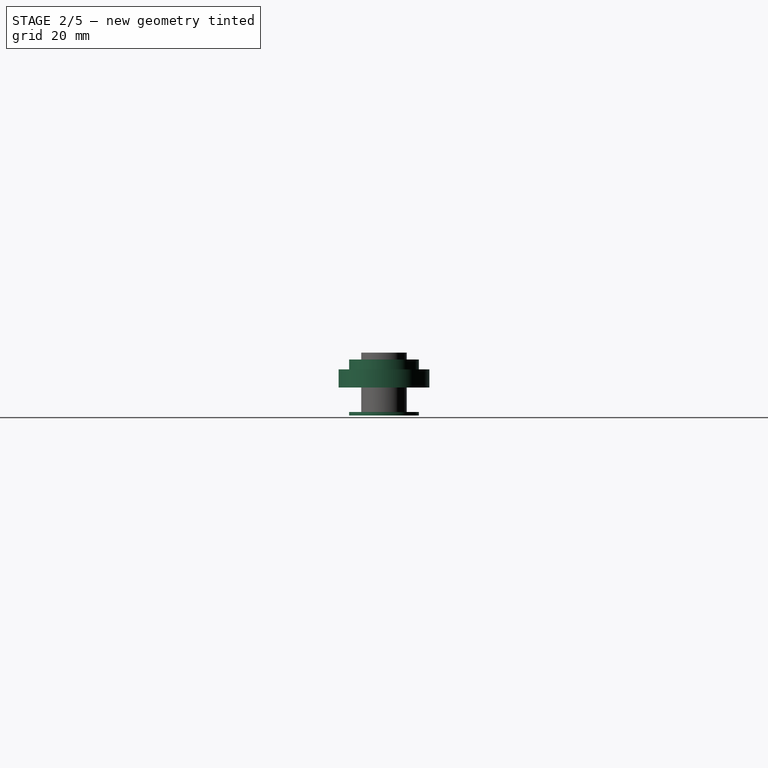
[diagram: stage 2 of 5 — right view after this stage's code; geometry added in this stage tinted green]
FEATURE [Sketcher::SketchObject] Sketch  label="LinearBearingBaseSketch"
  ArcFitTolerance = 1e-06
  AttachmentSupport = -> [XY_Plane]
  FullyConstrained = true
  MakeInternals = false
  MapMode = 5
  expr: Constraints[0] = <<Sizes>>.Bearing_external_diameter
  expr: Constraints[60] = <<Sizes>>.Bearing_internal_diameter
  sketch-geometry (24):
    g0: Circle CenterX=0 CenterY=0 CenterZ=0 NormalX=0 NormalY=0 NormalZ=1 AngleXU=0 Radius=10
    g1: LineSegment [constr] StartX=9 StartY=-2e-16 StartZ=0 EndX=8.10872 EndY=3.90495 EndZ=0
    g2: LineSegment [constr] StartX=8.10872 StartY=3.90495 StartZ=0 EndX=5.61141 EndY=7.03648 EndZ=0
    g3: LineSegment [constr] StartX=5.61141 StartY=7.03648 StartZ=0 EndX=2.00269 EndY=8.77435 EndZ=0
    g4: LineSegment [constr] StartX=2.00269 StartY=8.77435 StartZ=0 EndX=-2.00269 EndY=8.77435 EndZ=0
    g5: LineSegment [constr] StartX=-2.00269 StartY=8.77435 StartZ=0 EndX=-5.61141 EndY=7.03648 EndZ=0
    g6: LineSegment [constr] StartX=-5.61141 StartY=7.03648 StartZ=0 EndX=-8.10872 EndY=3.90495 EndZ=0
    g7: LineSegment [constr] StartX=-8.10872 StartY=3.90495 StartZ=0 EndX=-9 EndY=-1.1e-15 EndZ=0
    g8: LineSegment [constr] StartX=-9 StartY=-1.1e-15 StartZ=0 EndX=-8.10872 EndY=-3.90495 EndZ=0
    g9: LineSegment [constr] StartX=-8.10872 StartY=-3.90495 StartZ=0 EndX=-5.61141 EndY=-7.03648 EndZ=0
    g10: LineSegment [constr] StartX=-5.61141 StartY=-7.03648 StartZ=0 EndX=-2.00269 EndY=-8.77435 EndZ=0
    g11: LineSegment [constr] StartX=-2.00269 StartY=-8.77435 StartZ=0 EndX=2.00269 EndY=-8.77435 EndZ=0
    g12: LineSegment [constr] StartX=2.00269 StartY=-8.77435 StartZ=0 EndX=5.61141 EndY=-7.03648 EndZ=0
    g13: LineSegment [constr] StartX=5.61141 StartY=-7.03648 StartZ=0 EndX=8.10872 EndY=-3.90495 EndZ=0
    g14: LineSegment [constr] StartX=8.10872 StartY=-3.90495 StartZ=0 EndX=9 EndY=-2e-16 EndZ=0
    g15: Circle [constr] CenterX=0 CenterY=0 CenterZ=0 NormalX=0 NormalY=0 NormalZ=1 AngleXU=0 Radius=9
    g16: LineSegment [constr] StartX=-2.00269 StartY=8.77435 StartZ=0 EndX=2.00269 EndY=-8.77435 EndZ=0
    g17: LineSegment [constr] StartX=2.00269 StartY=8.77435 StartZ=0 EndX=-2.00269 EndY=-8.77435 EndZ=0
    g18: LineSegment [constr] StartX=5.61141 StartY=7.03648 StartZ=0 EndX=-5.61141 EndY=-7.03648 EndZ=0
    g19: LineSegment [constr] StartX=8.10872 StartY=3.90495 StartZ=0 EndX=-8.10872 EndY=-3.90495 EndZ=0
    g20: LineSegment [constr] StartX=9 StartY=-2e-16 StartZ=0 EndX=-9 EndY=-1.1e-15 EndZ=0
    g21: LineSegment [constr] StartX=-8.10872 StartY=3.90495 StartZ=0 EndX=8.10872 EndY=-3.90495 EndZ=0
    g22: LineSegment [constr] StartX=-5.61141 StartY=7.03648 StartZ=0 EndX=5.61141 EndY=-7.03648 EndZ=0
    g23: Circle CenterX=0 CenterY=0 CenterZ=0 NormalX=0 NormalY=0 NormalZ=1 AngleXU=0 Radius=5.45
  constraints (50):
    c: Diameter(g0) = 20
    c: Coincident(g0,g-1)
    c: Coincident(g1,g2)
    c: Coincident(g2,g3)
    c: Coincident(g3,g4)
    c: Coincident(g4,g5)
    c: Coincident(g5,g6)
    c: Coincident(g6,g7)
    c: Coincident(g7,g8)
    c: Coincident(g8,g9)
    c: Coincident(g9,g10)
    c: Coincident(g10,g11)
    c: Coincident(g11,g12)
    c: Coincident(g12,g13)
    c: Coincident(g13,g14)
    c: Coincident(g14,g1)
    c: Equal(g1, g2-g14) x13
    c: PointOnObject(g1,g15)
    c: PointOnObject(g2,g15)
    c: PointOnObject(g3,g15)
    c: PointOnObject(g4,g15)
    c: PointOnObject(g5,g15)
    c: PointOnObject(g6,g15)
    c: PointOnObject(g7,g15)
    c: PointOnObject(g8,g15)
    c: PointOnObject(g9,g15)
    c: PointOnObject(g10,g15)
    c: PointOnObject(g11,g15)
    c: PointOnObject(g12,g15)
    c: PointOnObject(g13,g15)
    c: PointOnObject(g14,g15)
    c: Radius(g15) = 9
    c: Coincident(g15,g0)
    c: PointOnObject(g14,g-1)
    c: Coincident(g16,g4)
    c: Coincident(g16,g11)
    c: Coincident(g17,g3)
    c: Coincident(g17,g10)
    c: Coincident(g18,g2)
    c: Coincident(g18,g9)
    c: Coincident(g19,g1)
    c: Coincident(g19,g8)
    c: Coincident(g20,g1)
    c: Coincident(g20,g7)
    c: Coincident(g21,g6)
    c: Coincident(g21,g13)
    c: Coincident(g22,g5)
    c: Coincident(g22,g12)
    c: Diameter(g23) = 10.9
    c: Coincident(g23,g0)
FEATURE [Spreadsheet::Sheet] Spreadsheet  label="Sizes"
  cells = A1='Bearing_external_diameter; B1(Bearing_external_diameter)=20; A2='Bearing_internal_diameter; B2(Bearing_internal_diameter)=10.9; A3='Coil_base_internal_diameter; B3(Coil_base_internal_diameter)=11.9; A4='Coil_base_external_diameter; B4(Coil_base_external_diameter)=12.5; A5='Coil_length; B5(Coil_length)=19; A6='Coil_base_length; B6(Coil_base_length)=20; A7='Magnet_length; B7(Magnet_length)=9.6; A8='Magnet_diameter; B8(Magnet_diameter)=9.9; A9='Bearing_length; B9(Bearing_length)=8; A10='Coil_external_diameter; B10(Coil_external_diameter)=26
FEATURE [Sketcher::SketchObject] Sketch002  label="LinearBearingBaseCutSketch"
  ArcFitTolerance = 1e-06
  AttachmentSupport = -> [XY_Plane]
  FullyConstrained = false
  MakeInternals = false
  MapMode = 5
  sketch-geometry (32):
    g0: LineSegment StartX=-0.5 StartY=9.08 StartZ=0 EndX=-0.5 EndY=-9.08 EndZ=0
    g1: LineSegment StartX=-0.5 StartY=-9.08 StartZ=0 EndX=0.5 EndY=-9.08 EndZ=0
    g2: LineSegment StartX=0.5 StartY=-9.08 StartZ=0 EndX=0.5 EndY=9.08 EndZ=0
    g3: LineSegment StartX=0.5 StartY=9.08 StartZ=0 EndX=-0.5 EndY=9.08 EndZ=0
    g4: LineSegment StartX=3.01522 StartY=8.5789 StartZ=0 EndX=-3.94052 EndY=-8.19716 EndZ=0
    g5: LineSegment StartX=-3.94052 StartY=-8.19716 StartZ=0 EndX=-3.01677 EndY=-8.58017 EndZ=0
    g6: LineSegment StartX=-3.01677 StartY=-8.58017 StartZ=0 EndX=3.93896 EndY=8.19589 EndZ=0
    g7: LineSegment StartX=3.93896 StartY=8.19589 StartZ=0 EndX=3.01522 EndY=8.5789 EndZ=0
    g8: LineSegment StartX=6.05635 StartY=6.77074 StartZ=0 EndX=-6.77744 EndY=-6.04961 EndZ=0
    g9: LineSegment StartX=-6.77744 StartY=-6.04961 StartZ=0 EndX=-6.0707 EndY=-6.75709 EndZ=0
    g10: LineSegment StartX=-6.0707 StartY=-6.75709 StartZ=0 EndX=6.76308 EndY=6.06327 EndZ=0
    g11: LineSegment StartX=6.76308 StartY=6.06327 StartZ=0 EndX=6.05635 EndY=6.77074 EndZ=0
    g12: LineSegment StartX=8.20348 StartY=3.93013 StartZ=0 EndX=-8.58261 EndY=-3.00574 EndZ=0
    g13: LineSegment StartX=-8.58261 StartY=-3.00574 StartZ=0 EndX=-8.20073 EndY=-3.92995 EndZ=0
    g14: LineSegment StartX=-8.20073 StartY=-3.92995 StartZ=0 EndX=8.58536 EndY=3.00592 EndZ=0
    g15: LineSegment StartX=8.58536 StartY=3.00592 StartZ=0 EndX=8.20348 EndY=3.93013 EndZ=0
    g16: LineSegment StartX=9.08056 StartY=0.490007 StartZ=0 EndX=-9.07944 EndY=0.490007 EndZ=0
    g17: LineSegment StartX=-9.07944 StartY=0.490007 StartZ=0 EndX=-9.07944 EndY=-0.509993 EndZ=0
    g18: LineSegment StartX=-9.07944 StartY=-0.509993 StartZ=0 EndX=9.08056 EndY=-0.509993 EndZ=0
    g19: LineSegment StartX=9.08056 StartY=-0.509993 StartZ=0 EndX=9.08056 EndY=0.490007 EndZ=0
    g20: LineSegment StartX=8.58536 StartY=-3.00592 StartZ=0 EndX=-8.19192 EndY=3.97092 EndZ=0
    g21: LineSegment StartX=-8.19192 StartY=3.97092 StartZ=0 EndX=-8.57589 EndY=3.04757 EndZ=0
    g22: LineSegment StartX=-8.57589 StartY=3.04757 StartZ=0 EndX=8.20139 EndY=-3.92926 EndZ=0
    g23: LineSegment StartX=8.20139 StartY=-3.92926 StartZ=0 EndX=8.58536 EndY=-3.00592 EndZ=0
    g24: LineSegment StartX=6.76308 StartY=-6.06327 StartZ=0 EndX=-6.04296 EndY=6.78307 EndZ=0
    g25: LineSegment StartX=-6.04296 StartY=6.78307 StartZ=0 EndX=-6.75117 EndY=6.07707 EndZ=0
    g26: LineSegment StartX=-6.75117 StartY=6.07707 StartZ=0 EndX=6.05487 EndY=-6.76926 EndZ=0
    g27: LineSegment StartX=6.05487 StartY=-6.76926 StartZ=0 EndX=6.76308 EndY=-6.06327 EndZ=0
    g28: LineSegment StartX=3.93896 StartY=-8.19589 StartZ=0 EndX=-2.97459 EndY=8.58596 EndZ=0
    g29: LineSegment StartX=-2.97459 StartY=8.58596 StartZ=0 EndX=-3.8992 EndY=8.20505 EndZ=0
    g30: LineSegment StartX=-3.8992 StartY=8.20505 StartZ=0 EndX=3.01435 EndY=-8.5768 EndZ=0
    g31: LineSegment StartX=3.01435 StartY=-8.5768 StartZ=0 EndX=3.93896 EndY=-8.19589 EndZ=0
  constraints (71):
    c: Coincident(g0,g1)
    c: Coincident(g1,g2)
    c: Coincident(g2,g3)
    c: Coincident(g3,g0)
    c: Vertical(g2)
    c: Horizontal(g1)
    c: Distance(g2) = 18.16
    c: Coincident(g4,g5)
    c: Coincident(g8,g9)
    c: Coincident(g12,g13)
    c: Coincident(g16,g17)
    c: Coincident(g20,g21)
    c: Coincident(g24,g25)
    c: Coincident(g28,g29)
    c: Coincident(g5,g6)
    c: Coincident(g9,g10)
    c: Coincident(g13,g14)
    c: Coincident(g17,g18)
    c: Coincident(g21,g22)
    c: Coincident(g25,g26)
    c: Coincident(g29,g30)
    c: Coincident(g6,g7)
    c: Coincident(g10,g11)
    c: Coincident(g14,g15)
    c: Coincident(g18,g19)
    c: Coincident(g22,g23)
    c: Coincident(g26,g27)
    c: Coincident(g30,g31)
    c: Coincident(g7,g4)
    c: Coincident(g11,g8)
    c: Coincident(g15,g12)
    c: Coincident(g19,g16)
    c: Coincident(g23,g20)
    c: Coincident(g27,g24)
    c: Coincident(g31,g28)
    c: Horizontal(g16)
    c: Vertical(g17)
    c: Angle(g4) = -1.96384
    c: Angle(g18,g8) = 0.784875
    c: Angle(g18,g12) = 0.391826
    c: Angle(g18,g22) = 2.7475
    c: Angle(g18,g26) = 2.35462
    c: Vertical(g0)
    c: Horizontal(g3)
    c: Parallel(g21,g23)
    c: Parallel(g20,g22)
    c: Perpendicular(g21,g20)
    c: Perpendicular(g25,g26)
    c: Parallel(g25,g27)
    c: Parallel(g30,g28)
    c: Parallel(g14,g12)
    c: Perpendicular(g15,g14)
    c: Parallel(g13,g15)
    c: Perpendicular(g8,g9)
    c: Parallel(g10,g8)
    c: Parallel(g9,g11)
    c: Parallel(g4,g6)
    c: Perpendicular(g4,g5)
    c: Parallel(g5,g7)
    c: Symmetric(g28,g6,g-1)
    c: Symmetric(g24,g10,g-1)
    c: Symmetric(g20,g14,g-1)
    c: Equal(g31,g27)
    c: Equal(g27,g23)
    c: Equal(g23,g19)
    c: Equal(g11,g7)
    c: Equal(g7,g29)
    c: Equal(g29,g25)
    c: Equal(g21,g17)
    c: Equal(g17,g13)
    c: Horizontal(g18)
FEATURE [PartDesign::Pad] Pad  label="LinearBearingBasePad"
  Direction = (0,0,1)
  Length = 8
  Length2 = 10
  Profile = -> Sketch
  ReferenceAxis = -> Sketch [N_Axis]
  Refine = true
  Suppressed = false
  Type = 0
FEATURE [PartDesign::Pocket] Pocket  label="LinearBearingBasePocket"
  BaseFeature = -> Pad
  Direction = (0,0,-1)
  Length = 13
  Length2 = 5
  Profile = -> Sketch002
  ReferenceAxis = -> Sketch002 [N_Axis]
  Refine = true
  Reversed = true
  Suppressed = false
  Type = 0
FEATURE [Part::Feature] Part__Feature  label="ISO4032-M2_"
  Placement = pos=(0,0,0) rot=(0,1,0;1.5708rad)
  shape: bbox 1.6 x 4.619 x 4.619 mm, 25 faces (baked)
FEATURE [Sketcher::SketchObject] Sketch006  label="BearingHolderSketch"
  ArcFitTolerance = 1e-06
  AttachmentSupport = -> [XY_Plane014]
  FullyConstrained = true
  MakeInternals = false
  MapMode = 5
  expr: Constraints[1] = <<Sizes>>.Coil_base_internal_diameter
  expr: Constraints[3] = <<Sizes>>.Coil_external_diameter
  sketch-geometry (2):
    g0: Circle CenterX=0 CenterY=0 CenterZ=0 NormalX=0 NormalY=0 NormalZ=1 AngleXU=0 Radius=5.95
    g1: Circle CenterX=0 CenterY=0 CenterZ=0 NormalX=0 NormalY=0 NormalZ=1 AngleXU=0 Radius=13
  constraints (4):
    c: Coincident(g0,g-1)
    c: Diameter(g0) = 11.9
    c: Coincident(g1,g0)
    c: Diameter(g1) = 26
FEATURE [PartDesign::Pad] Pad003
  Direction = (0,0,1)
  Length = 5.2
  Length2 = 10
  Profile = -> Sketch006
  ReferenceAxis = -> Sketch006 [N_Axis]
  Refine = true
  Suppressed = false
  Type = 0
FEATURE [Sketcher::SketchObject] Sketch007  label="LinearBearingBaseSketch001"
  ArcFitTolerance = 1e-06
  AttachmentSupport = -> [XY_Plane015]
  FullyConstrained = true
  MakeInternals = false
  MapMode = 5
  expr: Constraints[0] = <<Sizes001>>.Bearing_external_diameter
  sketch-geometry (24):
    g0: Circle CenterX=0 CenterY=0 CenterZ=0 NormalX=0 NormalY=0 NormalZ=1 AngleXU=0 Radius=10
    g1: LineSegment [constr] StartX=9 StartY=-2e-16 StartZ=0 EndX=8.10872 EndY=3.90495 EndZ=0
    g2: LineSegment [constr] StartX=8.10872 StartY=3.90495 StartZ=0 EndX=5.61141 EndY=7.03648 EndZ=0
    g3: LineSegment [constr] StartX=5.61141 StartY=7.03648 StartZ=0 EndX=2.00269 EndY=8.77435 EndZ=0
    g4: LineSegment [constr] StartX=2.00269 StartY=8.77435 StartZ=0 EndX=-2.00269 EndY=8.77435 EndZ=0
    g5: LineSegment [constr] StartX=-2.00269 StartY=8.77435 StartZ=0 EndX=-5.61141 EndY=7.03648 EndZ=0
    g6: LineSegment [constr] StartX=-5.61141 StartY=7.03648 StartZ=0 EndX=-8.10872 EndY=3.90495 EndZ=0
    g7: LineSegment [constr] StartX=-8.10872 StartY=3.90495 StartZ=0 EndX=-9 EndY=-1.1e-15 EndZ=0
    g8: LineSegment [constr] StartX=-9 StartY=-1.1e-15 StartZ=0 EndX=-8.10872 EndY=-3.90495 EndZ=0
    g9: LineSegment [constr] StartX=-8.10872 StartY=-3.90495 StartZ=0 EndX=-5.61141 EndY=-7.03648 EndZ=0
    g10: LineSegment [constr] StartX=-5.61141 StartY=-7.03648 StartZ=0 EndX=-2.00269 EndY=-8.77435 EndZ=0
    g11: LineSegment [constr] StartX=-2.00269 StartY=-8.77435 StartZ=0 EndX=2.00269 EndY=-8.77435 EndZ=0
    g12: LineSegment [constr] StartX=2.00269 StartY=-8.77435 StartZ=0 EndX=5.61141 EndY=-7.03648 EndZ=0
    g13: LineSegment [constr] StartX=5.61141 StartY=-7.03648 StartZ=0 EndX=8.10872 EndY=-3.90495 EndZ=0
    g14: LineSegment [constr] StartX=8.10872 StartY=-3.90495 StartZ=0 EndX=9 EndY=-2e-16 EndZ=0
    g15: Circle [constr] CenterX=0 CenterY=0 CenterZ=0 NormalX=0 NormalY=0 NormalZ=1 AngleXU=0 Radius=9
    g16: LineSegment [constr] StartX=-2.00269 StartY=8.77435 StartZ=0 EndX=2.00269 EndY=-8.77435 EndZ=0
    g17: LineSegment [constr] StartX=2.00269 StartY=8.77435 StartZ=0 EndX=-2.00269 EndY=-8.77435 EndZ=0
    g18: LineSegment [constr] StartX=5.61141 StartY=7.03648 StartZ=0 EndX=-5.61141 EndY=-7.03648 EndZ=0
    g19: LineSegment [constr] StartX=8.10872 StartY=3.90495 StartZ=0 EndX=-8.10872 EndY=-3.90495 EndZ=0
    g20: LineSegment [constr] StartX=9 StartY=-2e-16 StartZ=0 EndX=-9 EndY=-1.1e-15 EndZ=0
    g21: LineSegment [constr] StartX=-8.10872 StartY=3.90495 StartZ=0 EndX=8.10872 EndY=-3.90495 EndZ=0
    g22: LineSegment [constr] StartX=-5.61141 StartY=7.03648 StartZ=0 EndX=5.61141 EndY=-7.03648 EndZ=0
    g23: Circle CenterX=0 CenterY=0 CenterZ=0 NormalX=0 NormalY=0 NormalZ=1 AngleXU=0 Radius=5.75
  constraints (50):
    c: Diameter(g0) = 20
    c: Coincident(g0,g-1)
    c: Coincident(g1,g2)
    c: Coincident(g2,g3)
    c: Coincident(g3,g4)
    c: Coincident(g4,g5)
    c: Coincident(g5,g6)
    c: Coincident(g6,g7)
    c: Coincident(g7,g8)
    c: Coincident(g8,g9)
    c: Coincident(g9,g10)
    c: Coincident(g10,g11)
    c: Coincident(g11,g12)
    c: Coincident(g12,g13)
    c: Coincident(g13,g14)
    c: Coincident(g14,g1)
    c: Equal(g1, g2-g14) x13
    c: PointOnObject(g1,g15)
    c: PointOnObject(g2,g15)
    c: PointOnObject(g3,g15)
    c: PointOnObject(g4,g15)
    c: PointOnObject(g5,g15)
    c: PointOnObject(g6,g15)
    c: PointOnObject(g7,g15)
    c: PointOnObject(g8,g15)
    c: PointOnObject(g9,g15)
    c: PointOnObject(g10,g15)
    c: PointOnObject(g11,g15)
    c: PointOnObject(g12,g15)
    c: PointOnObject(g13,g15)
    c: PointOnObject(g14,g15)
    c: Radius(g15) = 9
    c: Coincident(g15,g0)
    c: PointOnObject(g14,g-1)
    c: Coincident(g16,g4)
    c: Coincident(g16,g11)
    c: Coincident(g17,g3)
    c: Coincident(g17,g10)
    c: Coincident(g18,g2)
    c: Coincident(g18,g9)
    c: Coincident(g19,g1)
    c: Coincident(g19,g8)
    c: Coincident(g20,g1)
    c: Coincident(g20,g7)
    c: Coincident(g21,g6)
    c: Coincident(g21,g13)
    c: Coincident(g22,g5)
    c: Coincident(g22,g12)
    c: Diameter(g23) = 11.5
    c: Coincident(g23,g0)
FEATURE [PartDesign::Pad] Pad004  label="LinearBearingBasePad001"
  Direction = (0,0,1)
  Length = 1
  Length2 = 10
  Profile = -> Sketch007
  ReferenceAxis = -> Sketch007 [N_Axis]
  Refine = true
  Suppressed = false
  Type = 0
FEATURE [Sketcher::SketchObject] Sketch008  label="LinearBearingBaseCutSketch001"
  ArcFitTolerance = 1e-06
  AttachmentSupport = -> [XY_Plane015]
  FullyConstrained = false
  MakeInternals = false
  MapMode = 5
  sketch-geometry (32):
    g0: LineSegment StartX=-0.5 StartY=9.08 StartZ=0 EndX=-0.5 EndY=-9.08 EndZ=0
    g1: LineSegment StartX=-0.5 StartY=-9.08 StartZ=0 EndX=0.5 EndY=-9.08 EndZ=0
    g2: LineSegment StartX=0.5 StartY=-9.08 StartZ=0 EndX=0.5 EndY=9.08 EndZ=0
    g3: LineSegment StartX=0.5 StartY=9.08 StartZ=0 EndX=-0.5 EndY=9.08 EndZ=0
    g4: LineSegment StartX=3.01522 StartY=8.5789 StartZ=0 EndX=-3.94052 EndY=-8.19716 EndZ=0
    g5: LineSegment StartX=-3.94052 StartY=-8.19716 StartZ=0 EndX=-3.01677 EndY=-8.58017 EndZ=0
    g6: LineSegment StartX=-3.01677 StartY=-8.58017 StartZ=0 EndX=3.93896 EndY=8.19589 EndZ=0
    g7: LineSegment StartX=3.93896 StartY=8.19589 StartZ=0 EndX=3.01522 EndY=8.5789 EndZ=0
    g8: LineSegment StartX=6.05635 StartY=6.77074 StartZ=0 EndX=-6.77744 EndY=-6.04961 EndZ=0
    g9: LineSegment StartX=-6.77744 StartY=-6.04961 StartZ=0 EndX=-6.0707 EndY=-6.75709 EndZ=0
    g10: LineSegment StartX=-6.0707 StartY=-6.75709 StartZ=0 EndX=6.76308 EndY=6.06327 EndZ=0
    g11: LineSegment StartX=6.76308 StartY=6.06327 StartZ=0 EndX=6.05635 EndY=6.77074 EndZ=0
    g12: LineSegment StartX=8.20348 StartY=3.93013 StartZ=0 EndX=-8.58261 EndY=-3.00574 EndZ=0
    g13: LineSegment StartX=-8.58261 StartY=-3.00574 StartZ=0 EndX=-8.20073 EndY=-3.92995 EndZ=0
    g14: LineSegment StartX=-8.20073 StartY=-3.92995 StartZ=0 EndX=8.58536 EndY=3.00592 EndZ=0
    g15: LineSegment StartX=8.58536 StartY=3.00592 StartZ=0 EndX=8.20348 EndY=3.93013 EndZ=0
    g16: LineSegment StartX=9.08056 StartY=0.490007 StartZ=0 EndX=-9.07944 EndY=0.490007 EndZ=0
    g17: LineSegment StartX=-9.07944 StartY=0.490007 StartZ=0 EndX=-9.07944 EndY=-0.509993 EndZ=0
    g18: LineSegment StartX=-9.07944 StartY=-0.509993 StartZ=0 EndX=9.08056 EndY=-0.509993 EndZ=0
    g19: LineSegment StartX=9.08056 StartY=-0.509993 StartZ=0 EndX=9.08056 EndY=0.490007 EndZ=0
    g20: LineSegment StartX=8.58536 StartY=-3.00592 StartZ=0 EndX=-8.19192 EndY=3.97092 EndZ=0
    g21: LineSegment StartX=-8.19192 StartY=3.97092 StartZ=0 EndX=-8.57589 EndY=3.04757 EndZ=0
    g22: LineSegment StartX=-8.57589 StartY=3.04757 StartZ=0 EndX=8.20139 EndY=-3.92926 EndZ=0
    g23: LineSegment StartX=8.20139 StartY=-3.92926 StartZ=0 EndX=8.58536 EndY=-3.00592 EndZ=0
    g24: LineSegment StartX=6.76308 StartY=-6.06327 StartZ=0 EndX=-6.04296 EndY=6.78307 EndZ=0
    g25: LineSegment StartX=-6.04296 StartY=6.78307 StartZ=0 EndX=-6.75117 EndY=6.07707 EndZ=0
    g26: LineSegment StartX=-6.75117 StartY=6.07707 StartZ=0 EndX=6.05487 EndY=-6.76926 EndZ=0
    g27: LineSegment StartX=6.05487 StartY=-6.76926 StartZ=0 EndX=6.76308 EndY=-6.06327 EndZ=0
    g28: LineSegment StartX=3.93896 StartY=-8.19589 StartZ=0 EndX=-2.97459 EndY=8.58596 EndZ=0
    g29: LineSegment StartX=-2.97459 StartY=8.58596 StartZ=0 EndX=-3.8992 EndY=8.20505 EndZ=0
    g30: LineSegment StartX=-3.8992 StartY=8.20505 StartZ=0 EndX=3.01435 EndY=-8.5768 EndZ=0
    g31: LineSegment StartX=3.01435 StartY=-8.5768 StartZ=0 EndX=3.93896 EndY=-8.19589 EndZ=0
  constraints (71):
    c: Coincident(g0,g1)
    c: Coincident(g1,g2)
    c: Coincident(g2,g3)
    c: Coincident(g3,g0)
    c: Vertical(g2)
    c: Horizontal(g1)
    c: Distance(g2) = 18.16
    c: Coincident(g4,g5)
    c: Coincident(g8,g9)
    c: Coincident(g12,g13)
    c: Coincident(g16,g17)
    c: Coincident(g20,g21)
    c: Coincident(g24,g25)
    c: Coincident(g28,g29)
    c: Coincident(g5,g6)
    c: Coincident(g9,g10)
    c: Coincident(g13,g14)
    c: Coincident(g17,g18)
    c: Coincident(g21,g22)
    c: Coincident(g25,g26)
    c: Coincident(g29,g30)
    c: Coincident(g6,g7)
    c: Coincident(g10,g11)
    c: Coincident(g14,g15)
    c: Coincident(g18,g19)
    c: Coincident(g22,g23)
    c: Coincident(g26,g27)
    c: Coincident(g30,g31)
    c: Coincident(g7,g4)
    c: Coincident(g11,g8)
    c: Coincident(g15,g12)
    c: Coincident(g19,g16)
    c: Coincident(g23,g20)
    c: Coincident(g27,g24)
    c: Coincident(g31,g28)
    c: Horizontal(g16)
    c: Vertical(g17)
    c: Angle(g4) = -1.96384
    c: Angle(g18,g8) = 0.784875
    c: Angle(g18,g12) = 0.391826
    c: Angle(g18,g22) = 2.7475
    c: Angle(g18,g26) = 2.35462
    c: Vertical(g0)
    c: Horizontal(g3)
    c: Parallel(g21,g23)
    c: Parallel(g20,g22)
    c: Perpendicular(g21,g20)
    c: Perpendicular(g25,g26)
    c: Parallel(g25,g27)
    c: Parallel(g30,g28)
    c: Parallel(g14,g12)
    c: Perpendicular(g15,g14)
    c: Parallel(g13,g15)
    c: Perpendicular(g8,g9)
    c: Parallel(g10,g8)
    c: Parallel(g9,g11)
    c: Parallel(g4,g6)
    c: Perpendicular(g4,g5)
    c: Parallel(g5,g7)
    c: Symmetric(g28,g6,g-1)
    c: Symmetric(g24,g10,g-1)
    c: Symmetric(g20,g14,g-1)
    c: Equal(g31,g27)
    c: Equal(g27,g23)
    c: Equal(g23,g19)
    c: Equal(g11,g7)
    c: Equal(g7,g29)
    c: Equal(g29,g25)
    c: Equal(g21,g17)
    c: Equal(g17,g13)
    c: Horizontal(g18)
FEATURE [PartDesign::Pocket] Pocket002  label="LinearBearingBasePocket001"
  BaseFeature = -> Pad004
  Direction = (0,0,-1)
  Length = 13
  Length2 = 5
  Profile = -> Sketch008
  ReferenceAxis = -> Sketch008 [N_Axis]
  Refine = true
  Reversed = true
  Suppressed = false
  Type = 0
FEATURE [Part::MultiFuse] Fusion004  label="Coil"
  Refine = true
  Shapes = -> [Fusion003,Body015]
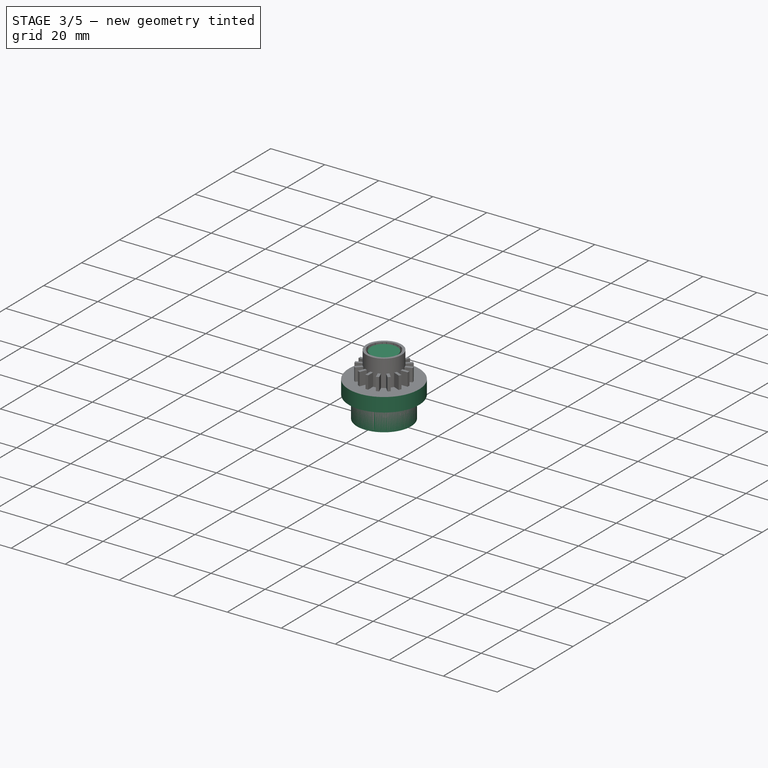
[diagram: stage 3 of 5 — iso view after this stage's code; geometry added in this stage tinted green]
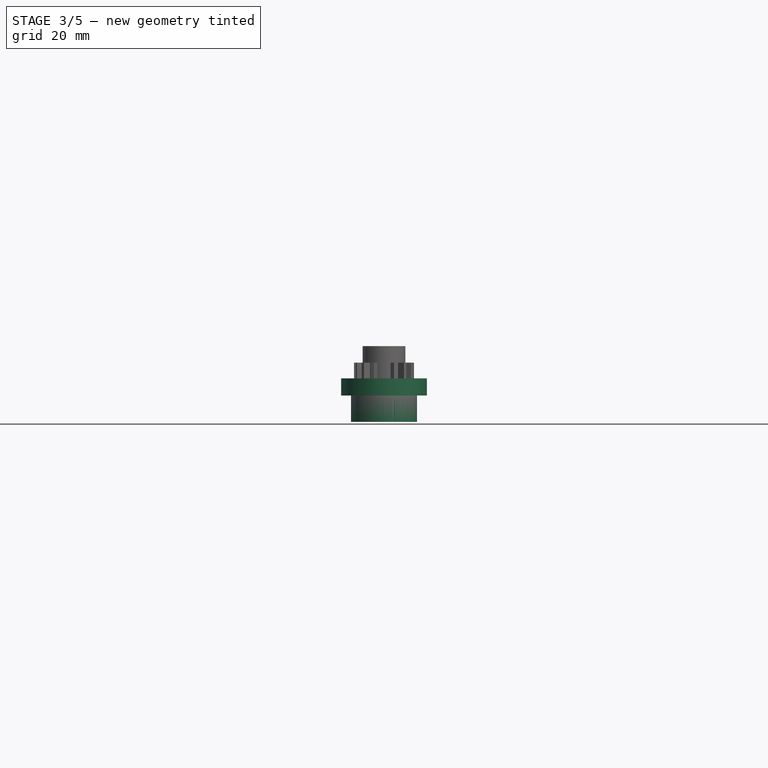
[diagram: stage 3 of 5 — front view after this stage's code; geometry added in this stage tinted green]
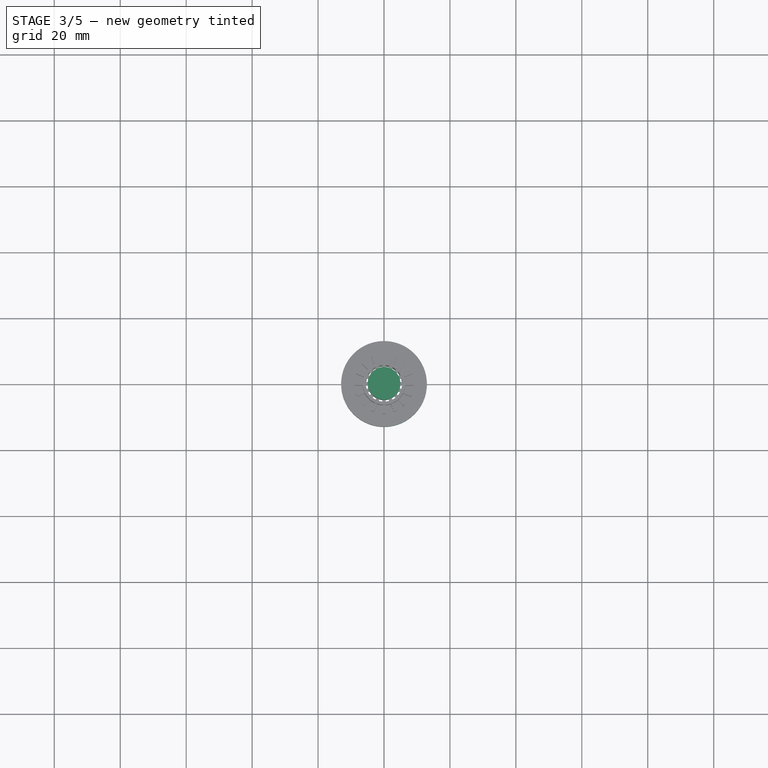
[diagram: stage 3 of 5 — top view after this stage's code; geometry added in this stage tinted green]
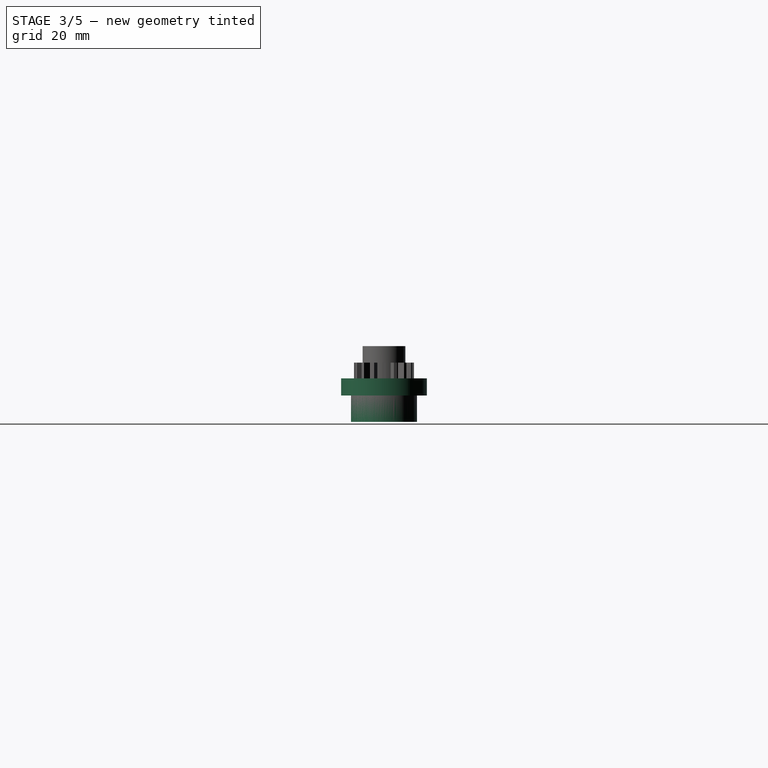
[diagram: stage 3 of 5 — right view after this stage's code; geometry added in this stage tinted green]
FEATURE [PartDesign::Body] Body002  label="coil_base"
  AllowCompound = false
  Group = -> [Sketch005,Pad002]
  Origin = -> Origin002
  Tip = -> Pad002
FEATURE [Part::Cylinder] Cylinder  label="Magnet"
  Angle = 360
  AttacherType = Attacher::AttachEngine3D
  FirstAngle = 0
  Height = 9.6
  Radius = 4.95
  SecondAngle = 0
FEATURE [PartDesign::Body] Body009  label="Magnet002"
  AllowCompound = false
  Group = -> [Clone006]
  Origin = -> Origin009
  Placement = pos=(0,0,19.2) rot=(0,0,1;0rad)
  Tip = -> Clone006
FEATURE [PartDesign::FeatureBase] Clone007
  BaseFeature = -> Cylinder
  Suppressed = false
FEATURE [PartDesign::Body] Body010  label="Magnet003"
  AllowCompound = false
  Group = -> [Clone007]
  Origin = -> Origin010
  Placement = pos=(0,0,28.8) rot=(0,0,1;0rad)
  Tip = -> Clone007
FEATURE [PartDesign::FeatureBase] Clone008
  BaseFeature = -> Cylinder
  Suppressed = false
FEATURE [PartDesign::FeatureBase] Clone010
  BaseFeature = -> Cylinder
  Suppressed = false
FEATURE [PartDesign::Body] Body014  label="linear_bearing_holder"
  AllowCompound = false
  Group = -> [Sketch006,Pad003]
  Origin = -> Origin014
  Tip = -> Pad003
FEATURE [Part::MultiFuse] Fusion002  label="LinearBearingFusion"
  Placement = pos=(0,0,-5) rot=(0,0,1;0rad)
  Refine = true
  Shapes = -> [Body,Body014]
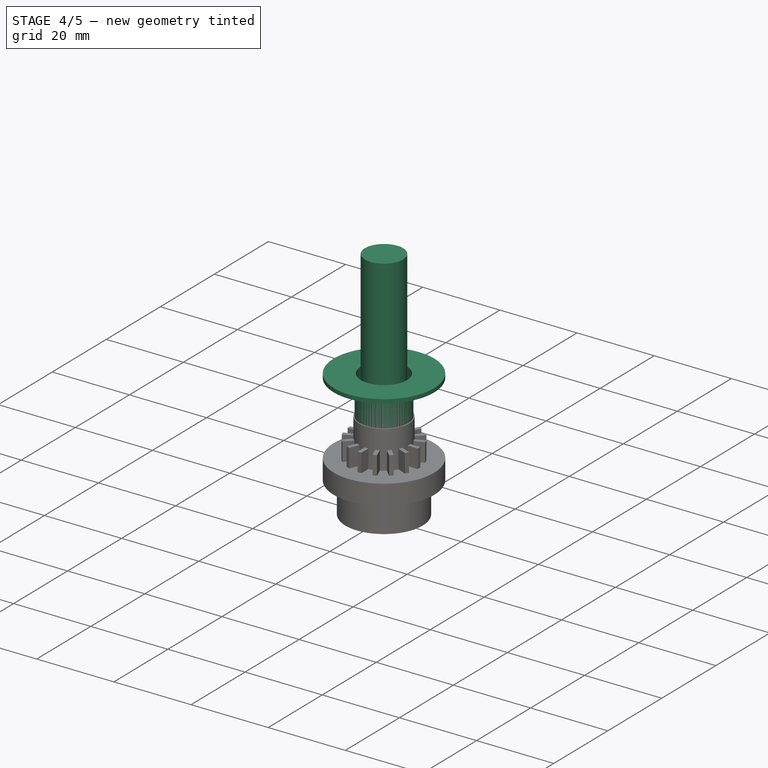
[diagram: stage 4 of 5 — iso view after this stage's code; geometry added in this stage tinted green]
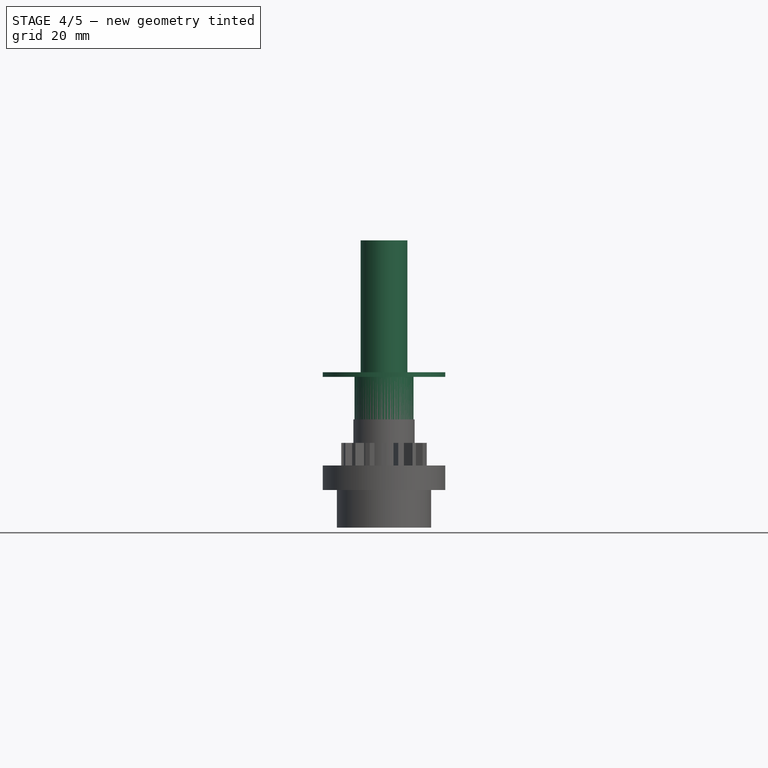
[diagram: stage 4 of 5 — front view after this stage's code; geometry added in this stage tinted green]
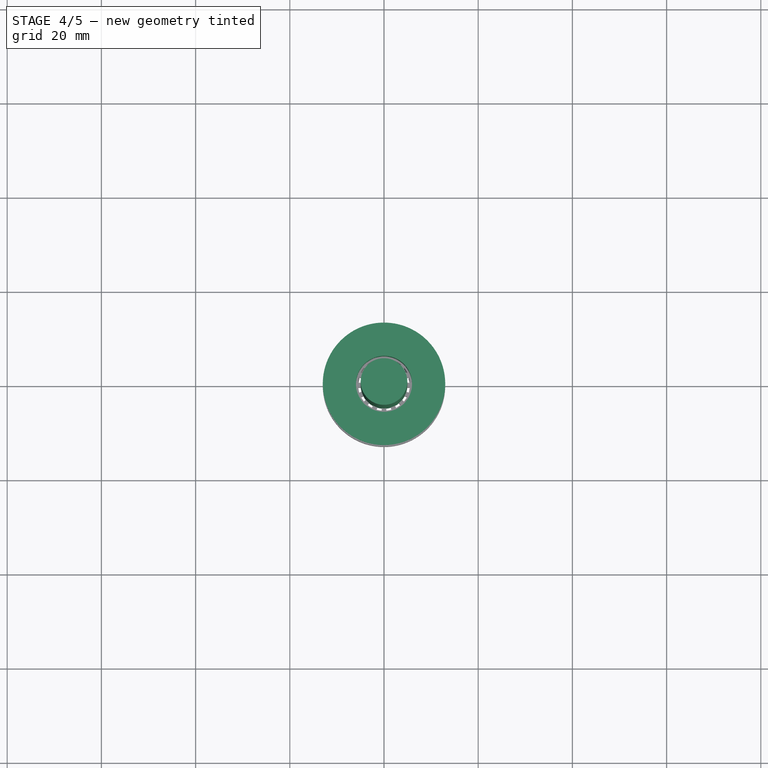
[diagram: stage 4 of 5 — top view after this stage's code; geometry added in this stage tinted green]
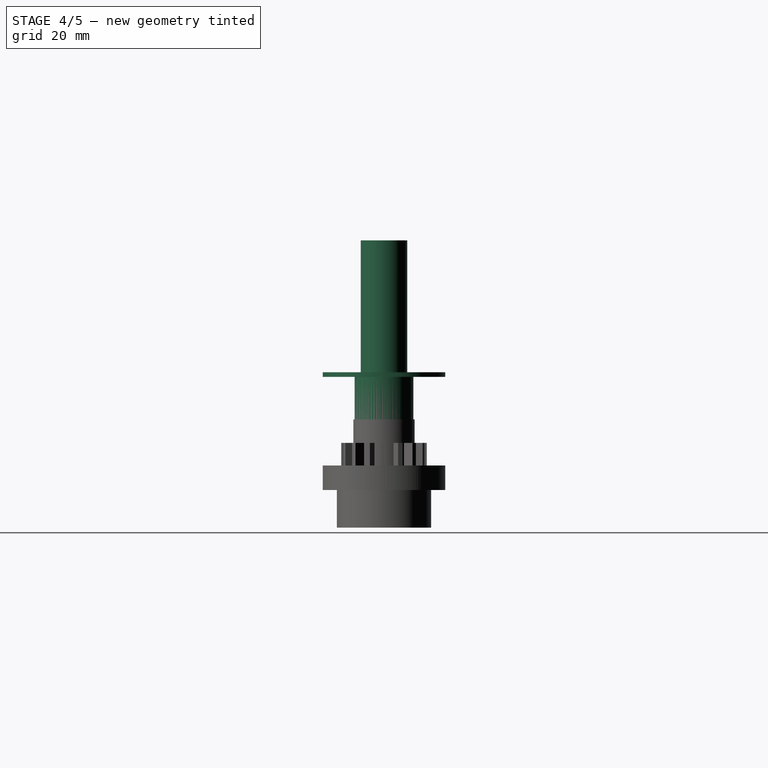
[diagram: stage 4 of 5 — right view after this stage's code; geometry added in this stage tinted green]
FEATURE [PartDesign::Body] Body  label="linear_bearing"
  AllowCompound = false
  Group = -> [Sketch,Sketch002,Pad,Pocket]
  Origin = -> Origin
  Placement = pos=(0,0,-8) rot=(0,0,1;0rad)
  Tip = -> Pocket
FEATURE [Sketcher::SketchObject] Sketch003  label="CoilSketch"
  ArcFitTolerance = 1e-06
  AttachmentSupport = -> [XY_Plane001]
  FullyConstrained = true
  MakeInternals = false
  MapMode = 5
  expr: Constraints[2] = <<Sizes>>.Coil_external_diameter
  expr: Constraints[3] = <<Sizes>>.Coil_base_internal_diameter
  expr: Constraints[5] = <<Sizes>>.Coil_base_external_diameter
  sketch-geometry (3):
    g0: Circle CenterX=0 CenterY=0 CenterZ=0 NormalX=0 NormalY=0 NormalZ=1 AngleXU=0 Radius=13
    g1: Circle CenterX=0 CenterY=0 CenterZ=0 NormalX=0 NormalY=0 NormalZ=1 AngleXU=0 Radius=5.95
    g2: Circle [constr] CenterX=0 CenterY=0 CenterZ=0 NormalX=0 NormalY=0 NormalZ=1 AngleXU=0 Radius=6.25
  constraints (6):
    c: Coincident(g0,g-1)
    c: Coincident(g1,g0)
    c: Diameter(g0) = 26
    c: Diameter(g1) = 11.9
    c: Coincident(g2,g0)
    c: Diameter(g2) = 12.5
FEATURE [Sketcher::SketchObject] Sketch004  label="CoilSketchPocket"
  ArcFitTolerance = 1e-06
  AttacherType = Attacher::AttachEngine3D
  AttachmentSupport = -> [XY_Plane001]
  FullyConstrained = true
  MakeInternals = false
  MapMode = 5
  expr: Constraints[2] = <<Sizes>>.Coil_external_diameter
  expr: Constraints[3] = <<Sizes>>.Coil_base_internal_diameter
  expr: Constraints[5] = <<Sizes>>.Coil_base_external_diameter
  sketch-geometry (3):
    g0: Circle CenterX=0 CenterY=0 CenterZ=0 NormalX=0 NormalY=0 NormalZ=1 AngleXU=0 Radius=13
    g1: Circle [constr] CenterX=0 CenterY=0 CenterZ=0 NormalX=0 NormalY=0 NormalZ=1 AngleXU=0 Radius=5.95
    g2: Circle CenterX=0 CenterY=0 CenterZ=0 NormalX=0 NormalY=0 NormalZ=1 AngleXU=0 Radius=6.25
  constraints (6):
    c: Coincident(g0,g-1)
    c: Coincident(g1,g0)
    c: Diameter(g0) = 26
    c: Diameter(g1) = 11.9
    c: Coincident(g2,g0)
    c: Diameter(g2) = 12.5
FEATURE [PartDesign::Pad] Pad001  label="CoilPad001"
  Direction = (0,0,1)
  Length = 20
  Length2 = 10
  Profile = -> Sketch003
  ReferenceAxis = -> Sketch003 [N_Axis]
  Refine = true
  Suppressed = false
  Type = 0
  expr: Length = <<Sizes>>.Coil_base_length
FEATURE [PartDesign::Pocket] Pocket001
  BaseFeature = -> Pad001
  Direction = (0,0,-1)
  Length = 19
  Length2 = 5
  Profile = -> Sketch004
  ReferenceAxis = -> Sketch004 [N_Axis]
  Refine = true
  Reversed = true
  Suppressed = false
  Type = 0
  expr: Length = <<Sizes>>.Coil_length
FEATURE [PartDesign::Body] Body006  label="coil004"
  AllowCompound = false
  Group = -> [Clone003]
  Origin = -> Origin006
  Placement = pos=(0,0,80) rot=(0,0,1;0rad)
  Tip = -> Clone003
FEATURE [PartDesign::FeatureBase] Clone005
  BaseFeature = -> Cylinder
  Suppressed = false
FEATURE [PartDesign::Body] Body008  label="Magnet001"
  AllowCompound = false
  BaseFeature = -> Cylinder
  Group = -> [Clone005]
  Origin = -> Origin008
  Placement = pos=(0,0,9.6) rot=(0,0,1;0rad)
  Tip = -> Clone005
FEATURE [PartDesign::FeatureBase] Clone006
  BaseFeature = -> Cylinder
  Suppressed = false
FEATURE [PartDesign::Body] Body011  label="Magnet004"
  AllowCompound = false
  Group = -> [Clone008]
  Origin = -> Origin011
  Placement = pos=(0,0,38.4) rot=(0,0,1;0rad)
  Tip = -> Clone008
FEATURE [PartDesign::FeatureBase] Clone009
  BaseFeature = -> Body001
  Suppressed = false
FEATURE [PartDesign::Body] Body013  label="Magnet000"
  AllowCompound = false
  Group = -> [Clone010]
  Origin = -> Origin013
  Tip = -> Clone010
FEATURE [Part::MultiFuse] Fusion001  label="MagnetsFusion"
  Refine = true
  Shapes = -> [Body013,Body008,Body009,Body010,Body011,Cylinder]
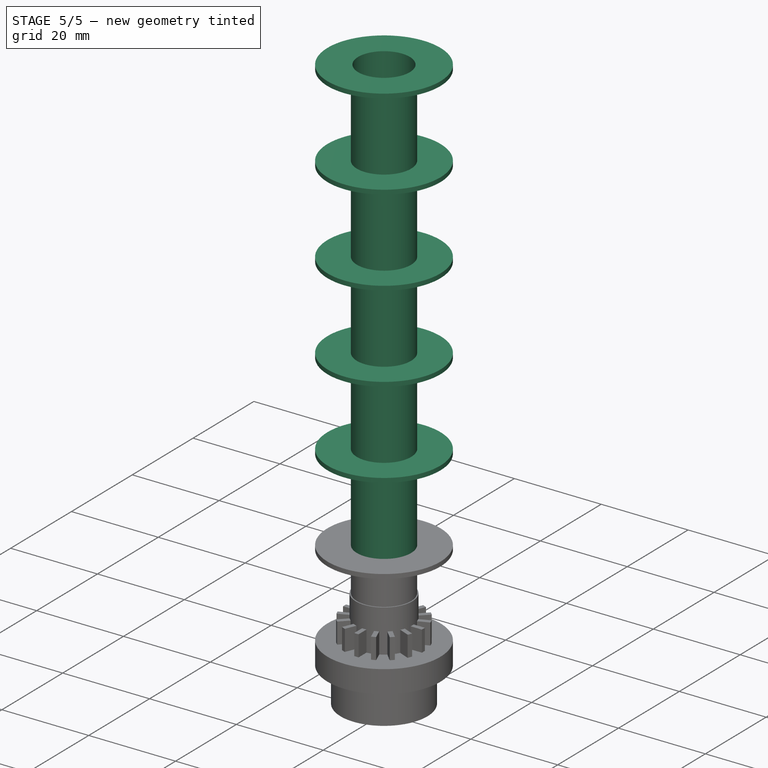
[diagram: stage 5 of 5 — iso view after this stage's code; geometry added in this stage tinted green]
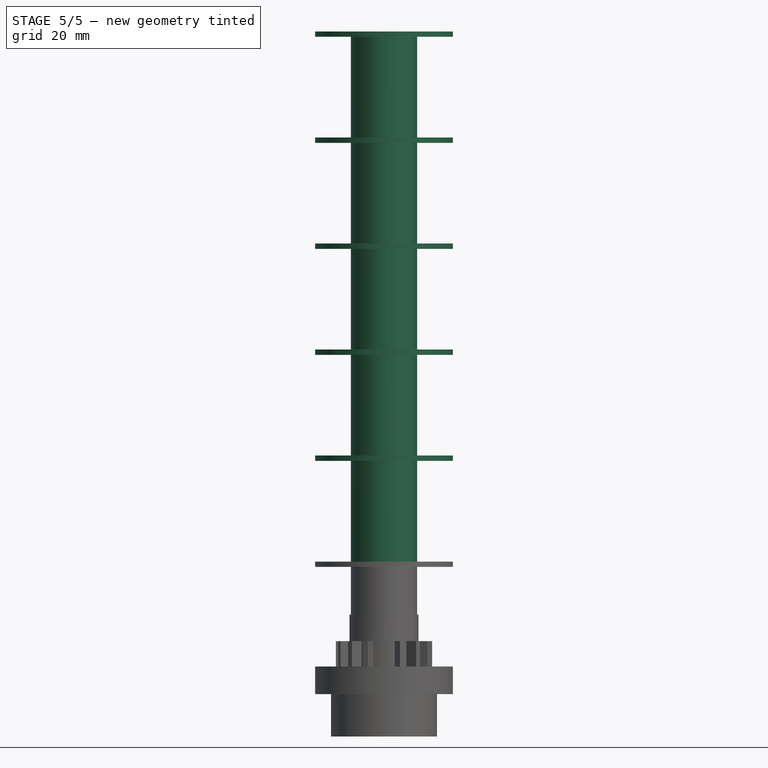
[diagram: stage 5 of 5 — front view after this stage's code; geometry added in this stage tinted green]
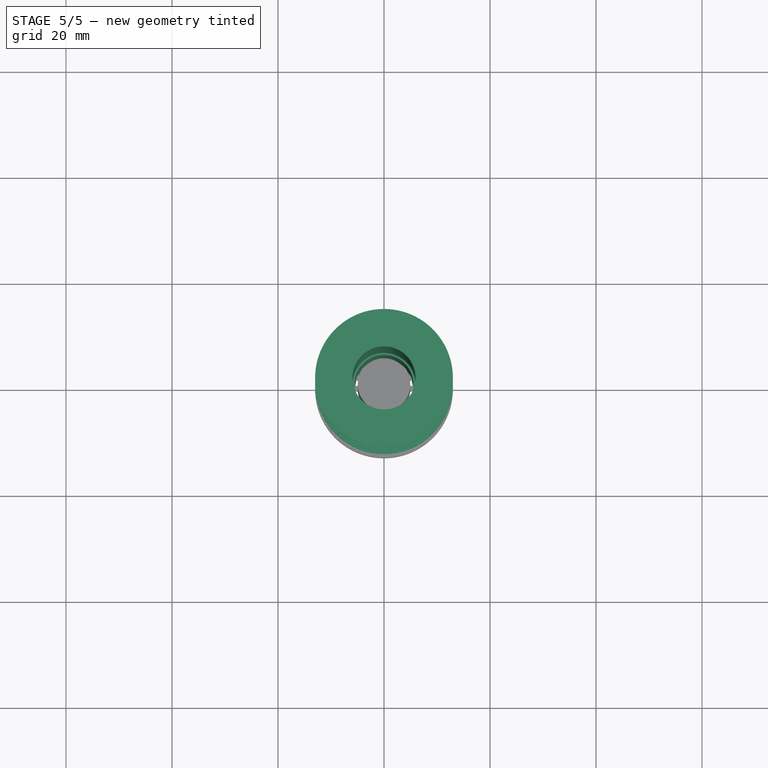
[diagram: stage 5 of 5 — top view after this stage's code; geometry added in this stage tinted green]
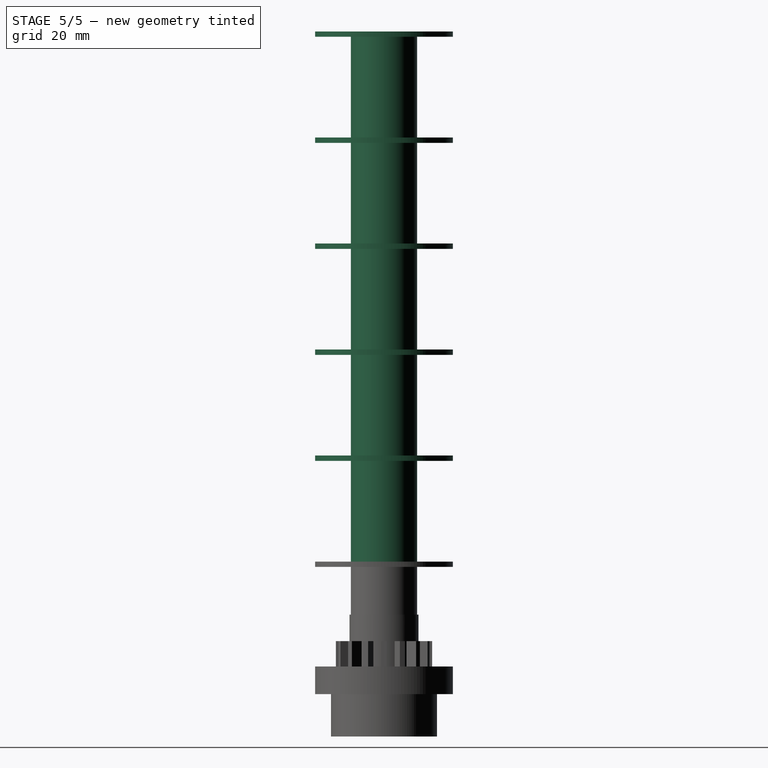
[diagram: stage 5 of 5 — right view after this stage's code; geometry added in this stage tinted green]
FEATURE [PartDesign::Body] Body001  label="coil"
  AllowCompound = false
  Group = -> [Sketch003,Sketch004,Pad001,Pocket001]
  Origin = -> Origin001
  Tip = -> Pocket001
FEATURE [Sketcher::SketchObject] Sketch005  label="CoilBaseSketch"
  ArcFitTolerance = 1e-06
  AttachmentSupport = -> [XY_Plane002]
  FullyConstrained = true
  MakeInternals = false
  MapMode = 5
  sketch-geometry (2):
    g0: Circle CenterX=0 CenterY=0 CenterZ=0 NormalX=0 NormalY=0 NormalZ=1 AngleXU=0 Radius=5.95
    g1: Circle CenterX=0 CenterY=0 CenterZ=0 NormalX=0 NormalY=0 NormalZ=1 AngleXU=0 Radius=5.55
  constraints (4):
    c: Coincident(g0,g-1)
    c: Diameter(g0) = 11.9
    c: Coincident(g1,g0)
    c: Diameter(g1) = 11.1
FEATURE [PartDesign::Pad] Pad002  label="CoilBasePad"
  Direction = (0,0,1)
  Length = 49
  Length2 = 10
  Profile = -> Sketch005
  ReferenceAxis = -> Sketch005 [N_Axis]
  Refine = true
  Suppressed = false
  Type = 0
FEATURE [PartDesign::FeatureBase] Clone
  BaseFeature = -> Body001
  Suppressed = false
FEATURE [PartDesign::Body] Body003  label="coil001"
  AllowCompound = false
  Group = -> [Clone]
  Origin = -> Origin003
  Placement = pos=(0,0,20) rot=(0,0,1;0rad)
  Tip = -> Clone
FEATURE [PartDesign::FeatureBase] Clone001
  BaseFeature = -> Body003
  Suppressed = false
FEATURE [PartDesign::Body] Body004  label="coil002"
  AllowCompound = false
  Group = -> [Clone001]
  Origin = -> Origin004
  Placement = pos=(0,0,40) rot=(0,0,1;0rad)
  Tip = -> Clone001
FEATURE [PartDesign::FeatureBase] Clone002
  BaseFeature = -> Body001
  Suppressed = false
FEATURE [PartDesign::Body] Body005  label="coil003"
  AllowCompound = false
  Group = -> [Clone002]
  Origin = -> Origin005
  Placement = pos=(0,0,60) rot=(0,0,1;0rad)
  Tip = -> Clone002
FEATURE [PartDesign::FeatureBase] Clone003
  BaseFeature = -> Body001
  Suppressed = false
FEATURE [PartDesign::Body] Body012  label="coil005"
  AllowCompound = false
  Group = -> [Clone009]
  Origin = -> Origin012
  Placement = pos=(0,0,100) rot=(0,0,1;0rad)
  Tip = -> Clone009
FEATURE [Part::MultiFuse] Fusion  label="CoilsFusion"
  Refine = true
  Shapes = -> [Body001,Body003,Body004,Body005,Body006,Body012]
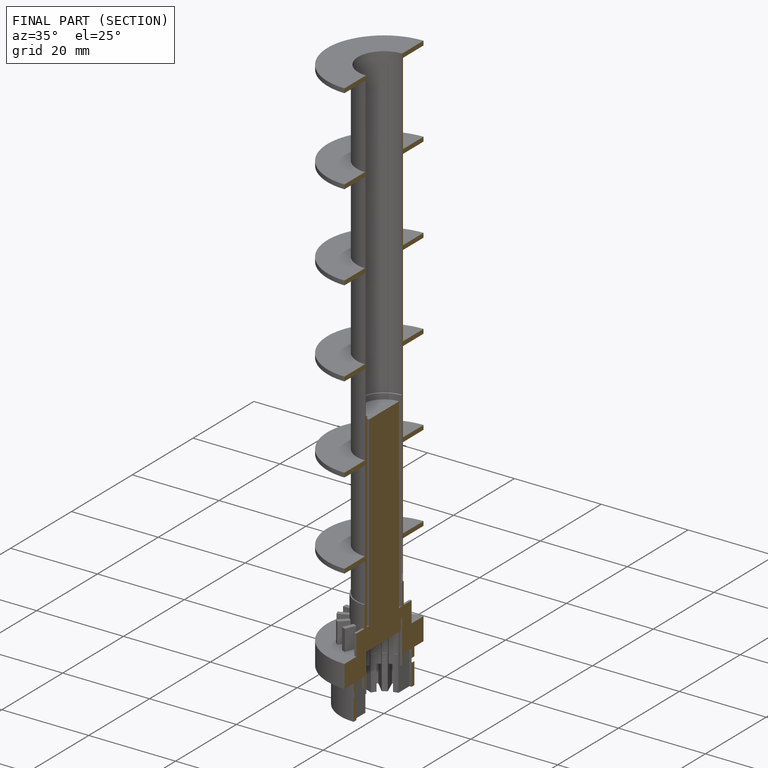
[diagram: finished part — half-section view (interior)]
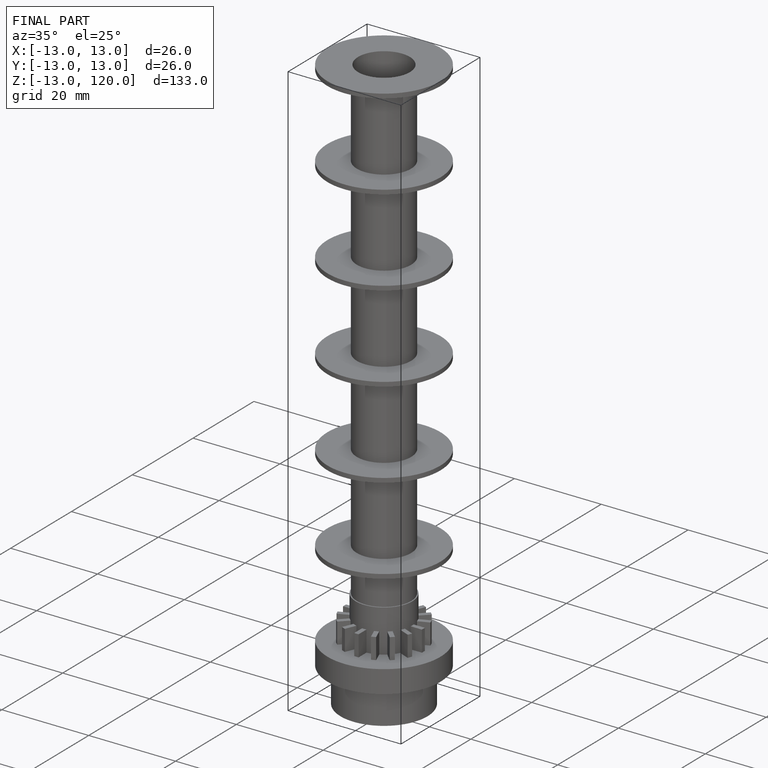
[diagram: finished part — iso view with bounding-box wireframe]
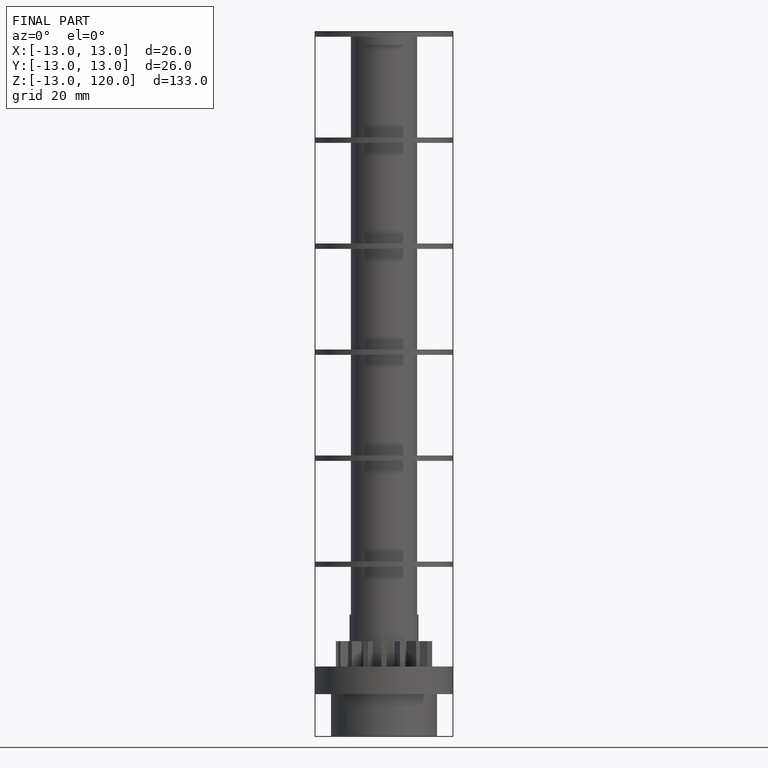
[diagram: finished part — front view with bounding-box wireframe]
